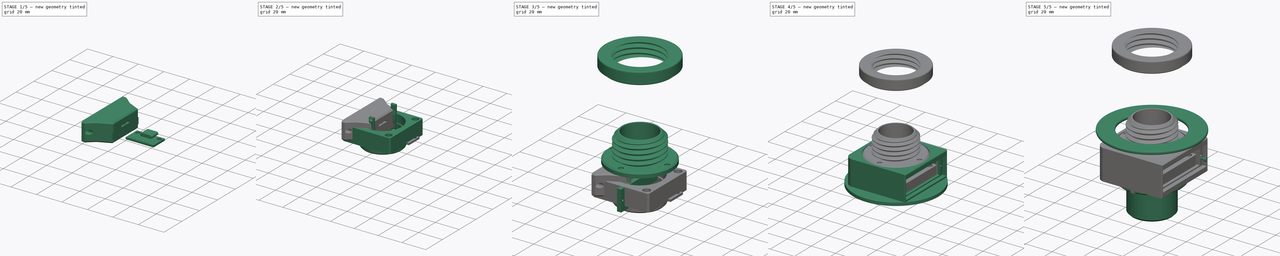
[diagram: build sequence overview — one tinted view per stage of 5, left to right]
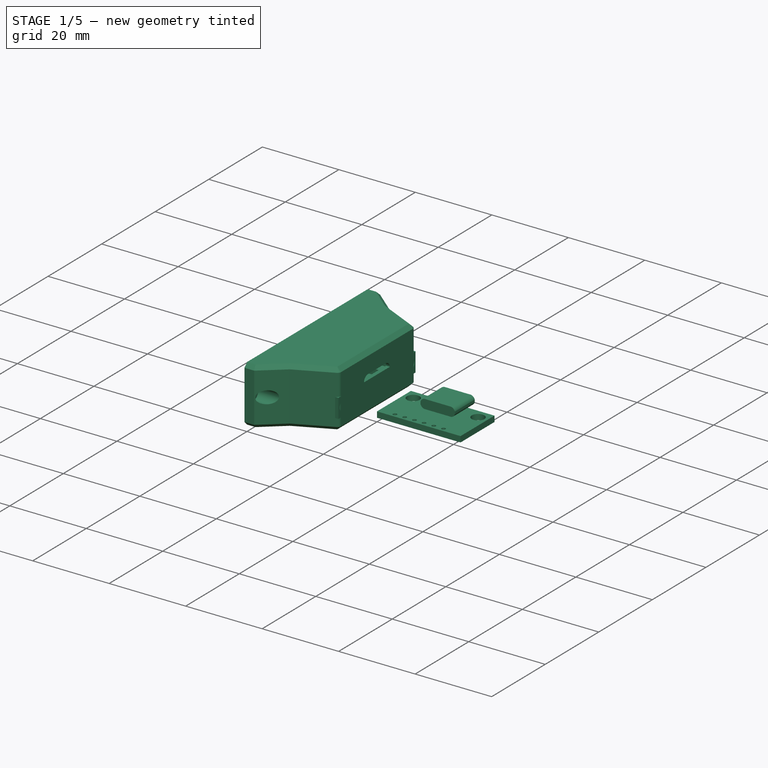
[diagram: stage 1 of 5 — iso view after this stage's code; geometry added in this stage tinted green]
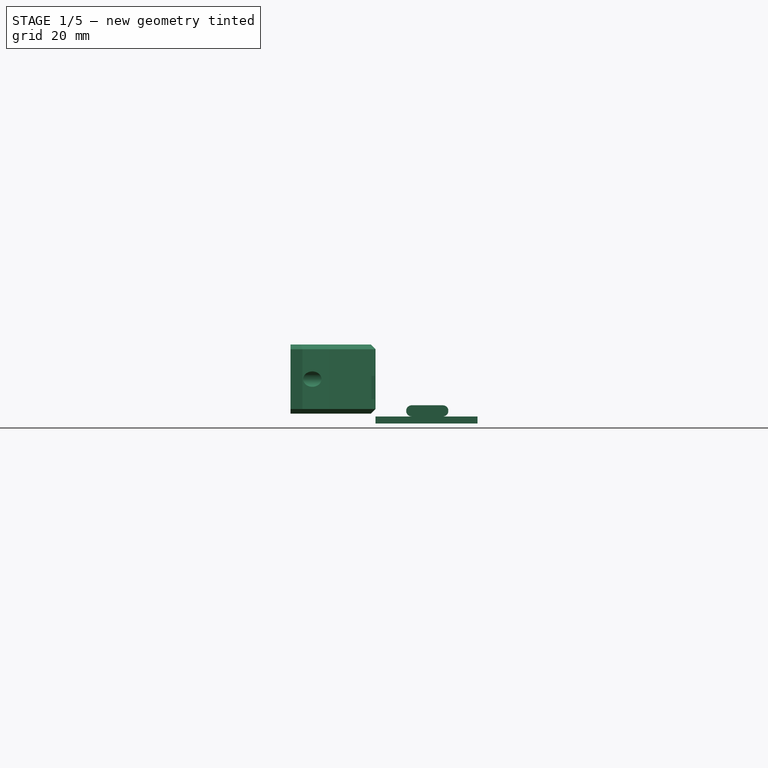
[diagram: stage 1 of 5 — front view after this stage's code; geometry added in this stage tinted green]
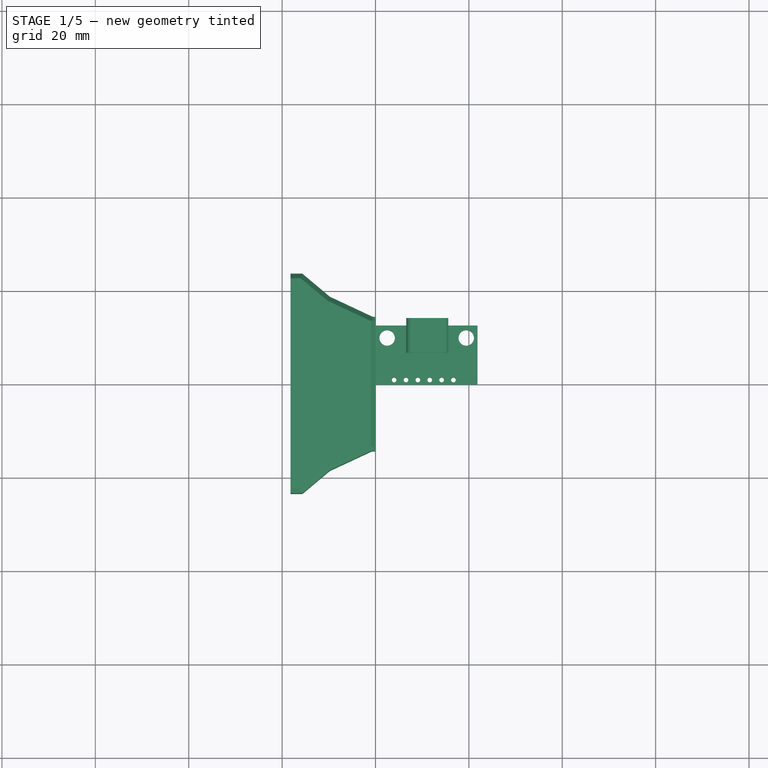
[diagram: stage 1 of 5 — top view after this stage's code; geometry added in this stage tinted green]
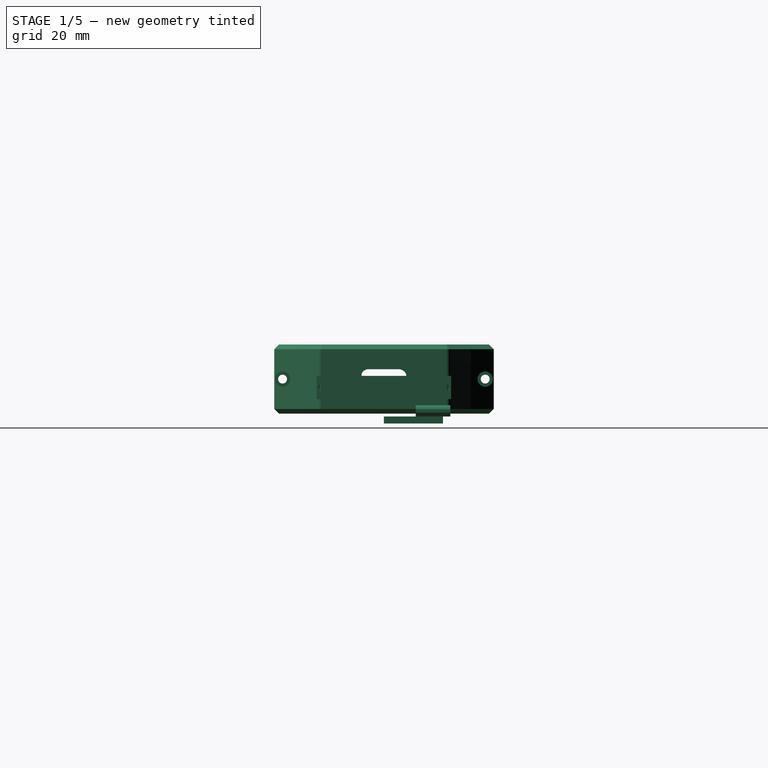
[diagram: stage 1 of 5 — right view after this stage's code; geometry added in this stage tinted green]
FCSTD DOCUMENT  (FreeCAD 0.20R29177 +426 (Git))
Label: Air_Ventilation_System
License: All rights reserved
LicenseURL: http://en.wikipedia.org/wiki/All_rights_reserved
objects: Sketcher::SketchObject×55, PartDesign::Pocket×27, PartDesign::Pad×23, PartDesign::Body×20, PartDesign::Chamfer×17, PartDesign::FeatureBase×8, PartDesign::Fillet×7, Part::FeaturePython×5, App::DocumentObjectGroup×3, Part::Cut×2, Part::Cylinder×1, Part::MultiFuse×1
note: 240 computed .brp shape members not serialized (recipe doc carries the construction recipe); baked Part::Feature solids carry a one-line shape summary decoded from their .brp

FEATURE [PartDesign::Body] Body016  label="Inner_Tube_Connector"
  Group = -> [Sketch036,Pad013,Sketch037,Pad014,Chamfer019,Chamfer020,Sketch,Pad015,Sketch038,Pad016,Fillet002,Sketch039,Pocket016,Fillet003,Sketch040,Pad017,Sketch041,Pad018,Fillet004,Sketch042,Pocket017,Fillet005,Chamfer021]
  Origin = -> Origin016
  Tip = -> Chamfer021
FEATURE [App::DocumentObjectGroup] Group001  label="Inner_Tube"
  Group = -> [Body,Body016]
FEATURE [Sketcher::SketchObject] Sketch043
  FullyConstrained = true
  MapMode = 5
  Support = -> [XY_Plane017]
  sketch-geometry (4):
    g0: LineSegment StartX=0 StartY=0 StartZ=0 EndX=21.85 EndY=0 EndZ=0
    g1: LineSegment StartX=21.85 StartY=0 StartZ=0 EndX=21.85 EndY=12.67 EndZ=0
    g2: LineSegment StartX=21.85 StartY=12.67 StartZ=0 EndX=0 EndY=12.67 EndZ=0
    g3: LineSegment StartX=0 StartY=12.67 StartZ=0 EndX=0 EndY=0 EndZ=0
  constraints (11):
    c: Coincident(g0,g1)
    c: Coincident(g1,g2)
    c: Coincident(g2,g3)
    c: Coincident(g3,g0)
    c: Horizontal(g0)
    c: Horizontal(g2)
    c: Vertical(g1)
    c: Vertical(g3)
    c: Coincident(g0,g-1)
    c: DistanceX(g0,g0) = 21.85
    c: DistanceY(g3,g3) = 12.67
FEATURE [PartDesign::Pad] Pad019  label="PCB_Board"
  Direction = (0,0,1)
  Length = 1.5
  Length2 = 10
  Profile = -> Sketch043
  ReferenceAxis = -> Sketch043 [N_Axis]
  Type = 0
FEATURE [Sketcher::SketchObject] Sketch044
  AttachmentOffset = pos=(0,0,-6.83) rot=(0,0,1;0rad)
  FullyConstrained = true
  MapMode = 5
  Placement = pos=(0,6.83,1.5e-15) rot=(1,0,0;1.5708rad)
  Support = -> [XZ_Plane017]
  sketch-geometry (11):
    g0: LineSegment StartX=0 StartY=0 StartZ=0 EndX=6.6 EndY=0 EndZ=0
    g1: LineSegment StartX=6.6 StartY=0 StartZ=0 EndX=6.6 EndY=2.39604 EndZ=0
    g2: LineSegment StartX=6.6 StartY=2.39604 StartZ=0 EndX=6.6 EndY=2.99604 EndZ=0
    g3: LineSegment StartX=6.6 StartY=2.39604 StartZ=0 EndX=15.58 EndY=2.39604 EndZ=0
    g4: LineSegment StartX=15.58 StartY=2.39604 StartZ=0 EndX=15.58 EndY=2.99604 EndZ=0
    g5: LineSegment StartX=7.79 StartY=1.5 StartZ=0 EndX=14.39 EndY=1.5 EndZ=0
    g6: LineSegment StartX=7.79 StartY=3.89207 StartZ=0 EndX=14.39 EndY=3.89207 EndZ=0
    g7: ArcOfCircle CenterX=7.75824 CenterY=2.69604 CenterZ=0 NormalX=0 NormalY=0 NormalZ=1 AngleXU=0 Radius=1.19646 StartAngle=3.39504 EndAngle=4.73894
    g8: ArcOfCircle CenterX=7.75824 CenterY=2.69604 CenterZ=0 NormalX=0 NormalY=0 NormalZ=1 AngleXU=0 Radius=1.19646 StartAngle=1.54424 EndAngle=2.88815
    g9: ArcOfCircle CenterX=14.4218 CenterY=2.69604 CenterZ=0 NormalX=0 NormalY=0 NormalZ=1 AngleXU=0 Radius=1.19646 StartAngle=4.68584 EndAngle=6.02974
    g10: ArcOfCircle CenterX=14.4218 CenterY=2.69604 CenterZ=0 NormalX=0 NormalY=0 NormalZ=1 AngleXU=0 Radius=1.19646 StartAngle=0.253445 EndAngle=1.59735
  constraints (34):
    c: Coincident(g0,g-1)
    c: PointOnObject(g0,g-1)
    c: DistanceX(g0,g0) = 6.6
    c: Coincident(g1,g0)
    c: Vertical(g1)
    c: Coincident(g2,g1)
    c: Vertical(g2)
    c: Coincident(g3,g2)
    c: Horizontal(g3)
    c: Coincident(g4,g3)
    c: Vertical(g4)
    c: DistanceX(g3,g3) = 8.98
    c: DistanceY(g2,g2) = 0.6
    c: Horizontal(g5)
    c: Horizontal(g6)
    c: Equal(g5,g6)
    c: DistanceX(g6,g6) = 6.6
    c: Coincident(g7,g2)
    c: Coincident(g7,g5)
    c: Coincident(g8,g7)
    c: Coincident(g8,g2)
    c: Coincident(g8,g6)
    c: Coincident(g9,g4)
    c: Coincident(g9,g5)
    c: Coincident(g10,g9)
    c: Coincident(g10,g4)
    c: Coincident(g10,g6)
    c: Equal(g4,g2)
    c: Angle(g10) = 1.3439
    c: Angle(g8) = 1.3439
    c: Angle(g9) = 1.3439
    c: Angle(g7) = 1.3439
    c: DistanceY(g5,g6) = 2.39207
    c: DistanceY(g0,g5) = 1.5
FEATURE [PartDesign::Pad] Pad020
  BaseFeature = -> Pad019
  Direction = (0,-1,2e-16)
  Length = 7.42
  Length2 = 10
  Profile = -> Sketch044
  ReferenceAxis = -> Sketch044 [N_Axis]
  Reversed = true
  Type = 0
FEATURE [Sketcher::SketchObject] Sketch045
  FullyConstrained = true
  MapMode = 5
  Support = -> [XY_Plane017]
  sketch-geometry (2):
    g0: Circle CenterX=2.5 CenterY=10 CenterZ=0 NormalX=0 NormalY=0 NormalZ=1 AngleXU=0 Radius=1.65
    g1: Circle CenterX=19.44 CenterY=10 CenterZ=0 NormalX=0 NormalY=0 NormalZ=1 AngleXU=0 Radius=1.65
  constraints (6):
    c: DistanceX(g-1,g0) = 2.5
    c: DistanceX(g1) = 19.44
    c: DistanceY(g-1,g0) = 10
    c: DistanceY(g-1,g1) = 10
    c: Equal(g1,g0)
    c: Diameter(g0) = 3.3
FEATURE [PartDesign::Pocket] Pocket018
  BaseFeature = -> Pad020
  Direction = (0,0,-1)
  Length = 5
  Length2 = 5
  Profile = -> Sketch045
  ReferenceAxis = -> Sketch045 [N_Axis]
  Reversed = true
  Type = 0
FEATURE [Sketcher::SketchObject] Sketch046
  FullyConstrained = true
  MapMode = 5
  Support = -> [XY_Plane017]
  sketch-geometry (14):
    g0: Circle CenterX=4 CenterY=1 CenterZ=0 NormalX=0 NormalY=0 NormalZ=1 AngleXU=0 Radius=0.5
    g1: Circle CenterX=6.54 CenterY=1 CenterZ=0 NormalX=0 NormalY=0 NormalZ=1 AngleXU=0 Radius=0.5
    g2: Circle CenterX=9.08 CenterY=1 CenterZ=0 NormalX=0 NormalY=0 NormalZ=1 AngleXU=0 Radius=0.5
    g3: Circle CenterX=11.62 CenterY=1 CenterZ=0 NormalX=0 NormalY=0 NormalZ=1 AngleXU=0 Radius=0.5
    g4: Circle CenterX=14.16 CenterY=1 CenterZ=0 NormalX=0 NormalY=0 NormalZ=1 AngleXU=0 Radius=0.5
    g5: Circle CenterX=16.7 CenterY=1 CenterZ=0 NormalX=0 NormalY=0 NormalZ=1 AngleXU=0 Radius=0.5
    g6: LineSegment StartX=4 StartY=1 StartZ=0 EndX=6.54 EndY=1 EndZ=0
    g7: LineSegment StartX=4 StartY=1 StartZ=0 EndX=4 EndY=0 EndZ=0
    g8: LineSegment StartX=9.08 StartY=1 StartZ=0 EndX=9.08 EndY=0 EndZ=0
    g9: LineSegment StartX=6.54 StartY=1 StartZ=0 EndX=9.08 EndY=1 EndZ=0
    g10: LineSegment StartX=9.08 StartY=1 StartZ=0 EndX=11.62 EndY=1 EndZ=0
    g11: LineSegment StartX=11.62 StartY=1 StartZ=0 EndX=14.16 EndY=1 EndZ=0
    g12: LineSegment StartX=14.16 StartY=1 StartZ=0 EndX=16.7 EndY=1 EndZ=0
    g13: LineSegment StartX=16.7 StartY=1 StartZ=0 EndX=16.7 EndY=0 EndZ=0
  constraints (37):
    c: Equal(g0,g1)
    c: Equal(g1,g2)
    c: Equal(g2,g3)
    c: Equal(g3,g4)
    c: Equal(g4,g5)
    c: DistanceX(g-1,g0) = 4
    c: Coincident(g6,g0)
    c: Coincident(g6,g1)
    c: Diameter(g0) = 1
    c: Coincident(g7,g0)
    c: PointOnObject(g7,g-1)
    c: Vertical(g7)
    c: Coincident(g8,g2)
    c: PointOnObject(g8,g-1)
    c: Vertical(g8)
    c: Equal(g7,g8)
    c: Coincident(g9,g1)
    c: Coincident(g9,g2)
    c: Horizontal(g9)
    c: Equal(g9,g6)
    c: DistanceY(g7,g7) = 1
    c: DistanceX(g6,g6) = 2.54
    c: Coincident(g10,g2)
    c: Coincident(g10,g3)
    c: Equal(g9,g10)
    c: Angle(g8,g10) = 1.5708
    c: Coincident(g11,g3)
    c: Coincident(g11,g4)
    c: Horizontal(g11)
    c: Coincident(g12,g4)
    c: Coincident(g12,g5)
    c: Equal(g11,g10)
    c: Equal(g12,g11)
    c: Coincident(g13,g5)
    c: PointOnObject(g13,g-1)
    c: Vertical(g13)
    c: Equal(g13,g8)
FEATURE [PartDesign::Pocket] Pocket019
  BaseFeature = -> Pocket018
  Direction = (0,0,-1)
  Length = 5
  Length2 = 5
  Profile = -> Sketch046
  ReferenceAxis = -> Sketch046 [N_Axis]
  Reversed = true
  Type = 0
FEATURE [Sketcher::SketchObject] Sketch047
  AttachmentOffset = pos=(0,0,-9) rot=(0,0,1;0rad)
  FullyConstrained = false
  MapMode = 5
  Placement = pos=(0,9,2e-15) rot=(1,0,0;1.5708rad)
  Support = -> [XZ_Plane017]
  sketch-geometry (11):
    g0: LineSegment StartX=0 StartY=0 StartZ=0 EndX=6.9 EndY=0 EndZ=0
    g1: LineSegment StartX=6.9 StartY=0 StartZ=0 EndX=6.9 EndY=2.40201 EndZ=0
    g2: LineSegment StartX=6.9 StartY=2.40201 StartZ=0 EndX=6.9 EndY=3.00201 EndZ=0
    g3: LineSegment StartX=6.9 StartY=2.40201 StartZ=0 EndX=15.3 EndY=2.40201 EndZ=0
    g4: LineSegment StartX=15.3 StartY=2.40201 StartZ=0 EndX=15.3 EndY=3.00201 EndZ=0
    g5: LineSegment StartX=7.93566 StartY=1.7 StartZ=0 EndX=14.2643 EndY=1.7 EndZ=0
    g6: LineSegment StartX=7.93566 StartY=3.70401 StartZ=0 EndX=14.2643 EndY=3.70401 EndZ=0
    g7: ArcOfCircle CenterX=7.8591 CenterY=2.70201 CenterZ=0 NormalX=0 NormalY=0 NormalZ=1 AngleXU=0 Radius=1.00493 StartAngle=3.44474 EndAngle=4.78865
    g8: ArcOfCircle CenterX=7.8591 CenterY=2.70201 CenterZ=0 NormalX=0 NormalY=0 NormalZ=1 AngleXU=0 Radius=1.00493 StartAngle=1.49454 EndAngle=2.83844
    g9: ArcOfCircle CenterX=14.3409 CenterY=2.70201 CenterZ=0 NormalX=0 NormalY=0 NormalZ=1 AngleXU=0 Radius=1.00493 StartAngle=4.63613 EndAngle=5.98003
    g10: ArcOfCircle CenterX=14.3409 CenterY=2.70201 CenterZ=0 NormalX=0 NormalY=0 NormalZ=1 AngleXU=0 Radius=1.00493 StartAngle=0.303151 EndAngle=1.64705
  constraints (34):
    c: Coincident(g0,g-1)
    c: PointOnObject(g0,g-1)
    c: DistanceX(g0,g0) = 6.9
    c: Coincident(g1,g0)
    c: Vertical(g1)
    c: Coincident(g2,g1)
    c: Vertical(g2)
    c: Coincident(g3,g2)
    c: Horizontal(g3)
    c: Coincident(g4,g3)
    c: Vertical(g4)
    c: DistanceX(g3,g3) = 8.4
    c: DistanceY(g2,g2) = 0.6
    c: Horizontal(g5)
    c: Horizontal(g6)
    c: Equal(g5,g6)
    c: DistanceX(g6,g6) = 6.32868
    c: Coincident(g7,g2)
    c: Coincident(g7,g5)
    c: Coincident(g8,g7)
    c: Coincident(g8,g2)
    c: Coincident(g8,g6)
    c: Coincident(g9,g4)
    c: Coincident(g9,g5)
    c: Coincident(g10,g9)
    c: Coincident(g10,g4)
    c: Coincident(g10,g6)
    c: Equal(g4,g2)
    c: Angle(g10) = 1.3439
    c: Angle(g8) = 1.3439
    c: Angle(g9) = 1.3439
    c: Angle(g7) = 1.3439
    c: DistanceY(g5,g6) = 2.00401
    c: DistanceY(g0,g5) = 1.7
FEATURE [PartDesign::Pocket] Pocket020
  BaseFeature = -> Pocket019
  Direction = (0,1,-2e-16)
  Length = 6
  Length2 = 5
  Profile = -> Sketch047
  ReferenceAxis = -> Sketch047 [N_Axis]
  Type = 0
FEATURE [PartDesign::Body] Body017  label="USB_Board"
  Group = -> [Sketch043,Pad019,Sketch044,Pad020,Sketch045,Pocket018,Sketch046,Pocket019,Sketch047,Pocket020,Sketch048,Pad021]
  Origin = -> Origin017
  Placement = pos=(28,11.1,7) rot=(0,0,-1;1.5708rad)
  Tip = -> Pad021
FEATURE [App::DocumentObjectGroup] Group002  label="Original_Parts"
  Group = -> [Body017,Body001]
FEATURE [Sketcher::SketchObject] Sketch049
  AttachmentOffset = pos=(0,0,2.1) rot=(0,0,1;0rad)
  FullyConstrained = false
  MapMode = 5
  Placement = pos=(0,0,2.1) rot=(0,0,1;0rad)
  Support = -> [XY_Plane018]
  sketch-geometry (11):
    g0: LineSegment StartX=0 StartY=0 StartZ=0 EndX=0 EndY=14 EndZ=0
    g1: LineSegment StartX=0 StartY=0 StartZ=0 EndX=0 EndY=-14 EndZ=0
    g2: LineSegment StartX=-15.6483 StartY=-23.4786 StartZ=0 EndX=-9.79606 EndY=-18.568 EndZ=0
    g3: LineSegment StartX=0 StartY=-14 StartZ=0 EndX=-9.79606 EndY=-18.568 EndZ=0
    g4: LineSegment StartX=0 StartY=14 StartZ=0 EndX=-9.78166 EndY=18.5987 EndZ=0
    g5: LineSegment StartX=-15.6483 StartY=23.5214 StartZ=0 EndX=-9.78166 EndY=18.5987 EndZ=0
    g6: LineSegment StartX=-15.6483 StartY=23.5214 StartZ=0 EndX=-18.2031 EndY=23.5214 EndZ=0
    g7: LineSegment StartX=-15.6483 StartY=-23.4786 StartZ=0 EndX=-18.2031 EndY=-23.4786 EndZ=0
    g8: LineSegment StartX=-18.2031 StartY=-23.4786 StartZ=0 EndX=-18.2031 EndY=23.5214 EndZ=0
    g9: LineSegment StartX=-15.6483 StartY=23.5214 StartZ=0 EndX=0 EndY=23.5214 EndZ=0
    g10: LineSegment StartX=-9.78166 StartY=18.5987 StartZ=0 EndX=0 EndY=18.5987 EndZ=0
  constraints (30):
    c: Coincident(g0,g-1)
    c: PointOnObject(g0,g-2)
    c: Coincident(g1,g0)
    c: PointOnObject(g1,g-2)
    c: DistanceY(g0,g0) = 14
    c: DistanceY(g1,g1) = 14
    c: Coincident(g3,g1)
    c: Coincident(g3,g2)
    c: Coincident(g4,g0)
    c: Equal(g3,g4)
    c: Coincident(g5,g4)
    c: Coincident(g6,g5)
    c: Horizontal(g6)
    c: Coincident(g7,g2)
    c: Coincident(g8,g7)
    c: Coincident(g8,g6)
    c: Vertical(g8)
    c: Coincident(g9,g5)
    c: PointOnObject(g9,g-2)
    c: Horizontal(g9)
    c: Angle(g5,g9) = 0.698132
    c: Coincident(g10,g4)
    c: PointOnObject(g10,g-2)
    c: Horizontal(g10)
    c: Angle(g4,g10) = 0.439474
    c: Angle(g-1,g3) = 0.436332
    c: Angle(g-1,g2) = 0.698132
    c: Equal(g7,g6)
    c: DistanceY(g8,g8) = 47
    c: Angle(g7,g8) = 1.5708
FEATURE [PartDesign::Pad] Pad022
  Direction = (0,0,1)
  Length = 14.8
  Length2 = 10
  Profile = -> Sketch049
  ReferenceAxis = -> Sketch049 [N_Axis]
  Type = 0
FEATURE [Sketcher::SketchObject] Sketch050
  AttachmentOffset = pos=(-1,0,4.1) rot=(0,0,1;0rad)
  FullyConstrained = false
  MapMode = 5
  Placement = pos=(-1,0,4.1) rot=(0,0,1;0rad)
  Support = -> [XY_Plane018]
  sketch-geometry (11):
    g0: LineSegment StartX=0 StartY=0 StartZ=0 EndX=0 EndY=12 EndZ=0
    g1: LineSegment StartX=0 StartY=0 StartZ=0 EndX=0 EndY=-12 EndZ=0
    g2: LineSegment StartX=-11.4397 StartY=-17.9788 StartZ=0 EndX=-9.71136 EndY=-16.5285 EndZ=0
    g3: LineSegment StartX=0 StartY=-12 StartZ=0 EndX=-9.71136 EndY=-16.5285 EndZ=0
    g4: LineSegment StartX=0 StartY=12 StartZ=0 EndX=-9.69709 EndY=16.559 EndZ=0
    g5: LineSegment StartX=-11.4397 StartY=18.0212 StartZ=0 EndX=-9.69709 EndY=16.559 EndZ=0
    g6: LineSegment StartX=-11.4397 StartY=18.0212 StartZ=0 EndX=-25.2045 EndY=18.0212 EndZ=0
    g7: LineSegment StartX=-11.4397 StartY=-17.9788 StartZ=0 EndX=-25.2045 EndY=-17.9788 EndZ=0
    g8: LineSegment StartX=-25.2045 StartY=-17.9788 StartZ=0 EndX=-25.2045 EndY=18.0212 EndZ=0
    g9: LineSegment StartX=-11.4397 StartY=18.0212 StartZ=0 EndX=0 EndY=18.0212 EndZ=0
    g10: LineSegment StartX=-9.69709 StartY=16.559 StartZ=0 EndX=0 EndY=16.559 EndZ=0
  constraints (30):
    c: Coincident(g0,g-1)
    c: PointOnObject(g0,g-2)
    c: Coincident(g1,g0)
    c: PointOnObject(g1,g-2)
    c: DistanceY(g0,g0) = 12
    c: DistanceY(g1,g1) = 12
    c: Coincident(g3,g1)
    c: Coincident(g3,g2)
    c: Coincident(g4,g0)
    c: Equal(g3,g4)
    c: Coincident(g5,g4)
    c: Coincident(g6,g5)
    c: Horizontal(g6)
    c: Coincident(g7,g2)
    c: Coincident(g8,g7)
    c: Coincident(g8,g6)
    c: Vertical(g8)
    c: Coincident(g9,g5)
    c: PointOnObject(g9,g-2)
    c: Horizontal(g9)
    c: Angle(g5,g9) = 0.698132
    c: Coincident(g10,g4)
    c: PointOnObject(g10,g-2)
    c: Horizontal(g10)
    c: Angle(g4,g10) = 0.439474
    c: Angle(g-1,g3) = 0.436332
    c: Angle(g-1,g2) = 0.698132
    c: Equal(g7,g6)
    c: DistanceY(g8,g8) = 36
    c: Angle(g7,g8) = 1.5708
FEATURE [PartDesign::Pocket] Pocket021
  BaseFeature = -> Pad022
  Direction = (0,0,-1)
  Length = 11
  Length2 = 5
  Profile = -> Sketch050
  ReferenceAxis = -> Sketch050 [N_Axis]
  Reversed = true
  Type = 0
FEATURE [Sketcher::SketchObject] Sketch051  label="PCB_Slides_Sketch"
  AttachmentOffset = pos=(0,7.2,-1) rot=(0,0,1;0rad)
  FullyConstrained = true
  MapMode = 5
  Placement = pos=(-1,1.8e-15,7.2) rot=(0.57735,0.57735,0.57735;2.0944rad)
  Support = -> [YZ_Plane018]
  sketch-geometry (18):
    g0: LineSegment StartX=-14.4 StartY=0 StartZ=0 EndX=-14.4 EndY=2.5 EndZ=0
    g1: LineSegment StartX=-14.4 StartY=0 StartZ=0 EndX=-14.4 EndY=-2.5 EndZ=0
    g2: LineSegment StartX=-14.4 StartY=2.5 StartZ=0 EndX=-9.1 EndY=2.5 EndZ=0
    g3: LineSegment StartX=-14.4 StartY=-2.5 StartZ=0 EndX=-9.1 EndY=-2.5 EndZ=0
    g4: LineSegment StartX=-9.1 StartY=-2.5 StartZ=0 EndX=-9.1 EndY=-1 EndZ=0
    g5: LineSegment StartX=-9.1 StartY=-1 StartZ=0 EndX=-11.4 EndY=-1 EndZ=0
    g6: LineSegment StartX=-11.4 StartY=-1 StartZ=0 EndX=-11.4 EndY=1 EndZ=0
    g7: LineSegment StartX=-9.1 StartY=2.5 StartZ=0 EndX=-9.1 EndY=1 EndZ=0
    g8: LineSegment StartX=-11.4 StartY=1 StartZ=0 EndX=-9.1 EndY=1 EndZ=0
    g9: LineSegment StartX=9.1 StartY=1 StartZ=0 EndX=11.4 EndY=1 EndZ=0
    g10: LineSegment StartX=11.4 StartY=-1 StartZ=0 EndX=9.1 EndY=-1 EndZ=0
    g11: LineSegment StartX=9.1 StartY=-1 StartZ=0 EndX=9.1 EndY=-2.5 EndZ=0
    g12: LineSegment StartX=14.4 StartY=2.5 StartZ=0 EndX=9.1 EndY=2.5 EndZ=0
    g13: LineSegment StartX=9.1 StartY=2.5 StartZ=0 EndX=9.1 EndY=1 EndZ=0
    g14: LineSegment StartX=11.4 StartY=0 StartZ=0 EndX=11.4 EndY=1 EndZ=0
    g15: LineSegment StartX=11.4 StartY=-1 StartZ=0 EndX=11.4 EndY=0 EndZ=0
    g16: LineSegment StartX=14.4 StartY=2.5 StartZ=0 EndX=14.4 EndY=-2.5 EndZ=0
    g17: LineSegment StartX=9.1 StartY=-2.5 StartZ=0 EndX=14.4 EndY=-2.5 EndZ=0
  constraints (54):
    c: PointOnObject(g0,g-1)
    c: Vertical(g0)
    c: Coincident(g1,g0)
    c: Vertical(g1)
    c: Coincident(g2,g0)
    c: Horizontal(g2)
    c: Coincident(g3,g1)
    c: Horizontal(g3)
    c: Coincident(g4,g3)
    c: Vertical(g4)
    c: Coincident(g5,g4)
    c: Horizontal(g5)
    c: Coincident(g6,g5)
    c: Vertical(g6)
    c: Coincident(g7,g2)
    c: DistanceY(g4,g4) = 1.5
    c: DistanceY(g-1,g7) = 1
    c: DistanceY(g4,g-1) = 1
    c: Equal(g4,g7)
    c: Coincident(g8,g6)
    c: Coincident(g8,g7)
    c: Horizontal(g8)
    c: DistanceX(g8,g8) = 2.3
    c: Angle(g7,g8) = 1.5708
    c: Equal(g8,g5)
    c: DistanceX(g2,g-1) = 9.1
    c: Horizontal(g9)
    c: Horizontal(g10)
    c: Coincident(g11,g10)
    c: Horizontal(g12)
    c: Coincident(g13,g12)
    c: Coincident(g13,g9)
    c: Angle(g13,g12) = 1.5708
    c: DistanceX(g-1,g12) = 9.1
    c: Equal(g4,g11)
    c: Equal(g11,g13)
    c: PointOnObject(g14,g-1)
    c: Coincident(g14,g9)
    c: Vertical(g14)
    c: Coincident(g15,g10)
    c: Coincident(g15,g14)
    c: Vertical(g15)
    c: DistanceY(g15,g15) = 1
    c: Equal(g15,g14)
    c: DistanceX(g9,g9) = 2.3
    c: Coincident(g16,g12)
    c: Vertical(g16)
    c: Coincident(g17,g11)
    c: Coincident(g17,g16)
    c: Horizontal(g17)
    c: Equal(g3,g17)
    c: Angle(g17,g11) = 1.5708
    c: Equal(g10,g9)
    c: DistanceX(g1,g5) = 3
FEATURE [PartDesign::Pad] Pad023  label="PCB_Slides"
  BaseFeature = -> Pocket021
  Direction = (1,-2e-16,3e-16)
  Length = 14
  Length2 = 10
  Profile = -> Sketch051
  ReferenceAxis = -> Sketch051 [N_Axis]
  Reversed = true
  Type = 0
FEATURE [Sketcher::SketchObject] Sketch052  label="USB_Pocket_Sketch"
  AttachmentOffset = pos=(0,9.7,0) rot=(0,0,1;0rad)
  FullyConstrained = true
  MapMode = 5
  Placement = pos=(-2.2e-15,2.2e-15,9.7) rot=(0.57735,0.57735,0.57735;2.0944rad)
  Support = -> [YZ_Plane018]
  sketch-geometry (8):
    g0: LineSegment StartX=-3.53 StartY=1.9 StartZ=0 EndX=3.37 EndY=1.9 EndZ=0
    g1: LineSegment StartX=-3.45 StartY=-1.9 StartZ=0 EndX=3.45 EndY=-1.9 EndZ=0
    g2: LineSegment StartX=-4.8 StartY=-0.6 StartZ=0 EndX=-4.8 EndY=0.8 EndZ=0
    g3: LineSegment StartX=4.8 StartY=-0.7 StartZ=0 EndX=4.8 EndY=0.7 EndZ=0
    g4: ArcOfCircle CenterX=-3.16134 CenterY=-0.249271 CenterZ=0 NormalX=0 NormalY=0 NormalZ=1 AngleXU=0 Radius=1.67578 StartAngle=3.35244 EndAngle=4.53927
    g5: ArcOfCircle CenterX=-3.34959 CenterY=0.408574 CenterZ=0 NormalX=0 NormalY=0 NormalZ=1 AngleXU=0 Radius=1.5023 StartAngle=1.69118 EndAngle=2.878
    g6: ArcOfCircle CenterX=3.19546 CenterY=0.239969 CenterZ=0 NormalX=0 NormalY=0 NormalZ=1 AngleXU=0 Radius=1.66918 StartAngle=0.279217 EndAngle=1.46604
    g7: ArcOfCircle CenterX=3.23546 CenterY=-0.299271 CenterZ=0 NormalX=0 NormalY=0 NormalZ=1 AngleXU=0 Radius=1.61504 StartAngle=4.84562 EndAngle=6.03244
  constraints (28):
    c: Horizontal(g0)
    c: Horizontal(g1)
    c: Vertical(g2)
    c: Vertical(g3)
    c: DistanceY(g2,g2) = 1.4
    c: Equal(g3,g2)
    c: Equal(g1,g0)
    c: DistanceY(g2,g-1) = 0.6
    c: DistanceX(g2,g-1) = 4.8
    c: DistanceX(g-1,g3) = 4.8
    c: DistanceX(g-1,g1) = 3.45
    c: DistanceX(g-1,g0) = 3.37
    c: DistanceX(g1,g-1) = 3.45
    c: DistanceY(g1,g-1) = 1.9
    c: DistanceY(g-1,g0) = 1.9
    c: Coincident(g4,g2)
    c: Coincident(g4,g1)
    c: Angle(g4) = 1.18682
    c: Coincident(g5,g2)
    c: Coincident(g5,g0)
    c: Angle(g5) = 1.18682
    c: Coincident(g6,g0)
    c: Coincident(g6,g3)
    c: Angle(g6) = 1.18682
    c: Coincident(g7,g1)
    c: Coincident(g7,g3)
    c: Angle(g7) = 1.18682
    c: DistanceY(g3,g-1) = 0.7
FEATURE [PartDesign::Pocket] Pocket022  label="USB_Pocket"
  BaseFeature = -> Pad023
  Direction = (-1,2e-16,-3e-16)
  Length = 2
  Length2 = 5
  Profile = -> Sketch052
  ReferenceAxis = -> Sketch052 [N_Axis]
  Type = 0
FEATURE [Sketcher::SketchObject] Sketch053
  FullyConstrained = true
  MapMode = 5
  Placement = pos=(0,0,0) rot=(0.57735,0.57735,0.57735;2.0944rad)
  Support = -> [YZ_Plane018]
  sketch-geometry (3):
    g0: Circle CenterX=-21.7 CenterY=9.5 CenterZ=0 NormalX=0 NormalY=0 NormalZ=1 AngleXU=0 Radius=0.95
    g1: Circle CenterX=21.7 CenterY=9.5 CenterZ=0 NormalX=0 NormalY=0 NormalZ=1 AngleXU=0 Radius=0.95
    g2: LineSegment StartX=-21.7 StartY=9.5 StartZ=0 EndX=21.7 EndY=9.5 EndZ=0
  constraints (8):
    c: Equal(g0,g1)
    c: Coincident(g2,g0)
    c: Coincident(g2,g1)
    c: Horizontal(g2)
    c: DistanceY(g-1,g0) = 9.5
    c: DistanceX(g-1,g1) = 21.7
    c: DistanceX(g0,g-1) = 21.7
    c: Diameter(g0) = 1.9
FEATURE [PartDesign::Pocket] Pocket023  label="Power_Supply_Screw_Through_Hole"
  BaseFeature = -> Pocket022
  Direction = (-1,2e-16,-3e-16)
  Length = 22
  Length2 = 5
  Profile = -> Sketch053
  ReferenceAxis = -> Sketch053 [N_Axis]
  Type = 0
FEATURE [Sketcher::SketchObject] Sketch054
  AttachmentOffset = pos=(0,0,3) rot=(0,0,1;0rad)
  FullyConstrained = true
  MapMode = 5
  Placement = pos=(3,-7e-16,7e-16) rot=(0.57735,0.57735,0.57735;2.0944rad)
  Support = -> [YZ_Plane018]
  sketch-geometry (3):
    g0: Circle CenterX=-21.7 CenterY=9.5 CenterZ=0 NormalX=0 NormalY=0 NormalZ=1 AngleXU=0 Radius=1.65
    g1: Circle CenterX=21.7 CenterY=9.5 CenterZ=0 NormalX=0 NormalY=0 NormalZ=1 AngleXU=0 Radius=1.65
    g2: LineSegment StartX=-21.7 StartY=9.5 StartZ=0 EndX=21.7 EndY=9.5 EndZ=0
  constraints (8):
    c: Equal(g0,g1)
    c: Coincident(g2,g0)
    c: Coincident(g2,g1)
    c: Horizontal(g2)
    c: DistanceY(g-1,g0) = 9.5
    c: DistanceX(g-1,g1) = 21.7
    c: DistanceX(g0,g-1) = 21.7
    c: Diameter(g0) = 3.3
FEATURE [PartDesign::Pocket] Pocket024  label="Power_Supply_Screw_Head_Pocket"
  BaseFeature = -> Pocket023
  Direction = (-1,2e-16,-3e-16)
  Length = 20
  Length2 = 5
  Profile = -> Sketch054
  ReferenceAxis = -> Sketch054 [N_Axis]
  Type = 0
FEATURE [PartDesign::Fillet] Fillet006
  Base = -> Pocket024 [Edge23,Edge40]
  BaseFeature = -> Pocket024
  Radius = 1
  SupportTransform = false
  UseAllEdges = false
FEATURE [PartDesign::Chamfer] Chamfer022
  Angle = 45
  Base = -> Fillet006 [Edge11,Edge9,Edge10,Edge6,Edge8,Edge4,Edge3,Edge5,Edge1,Edge2,Edge29,Edge18,Edge14,Edge16,Edge21,Edge31,Edge50,Edge46,Edge51,Edge48]
  BaseFeature = -> Fillet006
  ChamferType = 0
  FlipDirection = false
  Size = 1
  Size2 = 1
  SupportTransform = false
  UseAllEdges = false
FEATURE [Sketcher::SketchObject] Sketch055
  AttachmentOffset = pos=(0,0,-11) rot=(0,0,1;0rad)
  FullyConstrained = true
  MapMode = 5
  Placement = pos=(-11,2.4e-15,-2.4e-15) rot=(0.57735,0.57735,0.57735;2.0944rad)
  Support = -> [YZ_Plane018]
  sketch-geometry (2):
    g0: Circle CenterX=-13 CenterY=7.2 CenterZ=0 NormalX=0 NormalY=0 NormalZ=1 AngleXU=0 Radius=0.65
    g1: Circle CenterX=13 CenterY=7.2 CenterZ=0 NormalX=0 NormalY=0 NormalZ=1 AngleXU=0 Radius=0.65
  constraints (6):
    c: Equal(g0,g1)
    c: Diameter(g0) = 1.3
    c: DistanceX(g0,g-1) = 13
    c: DistanceX(g-1,g1) = 13
    c: DistanceY(g1) = 7.2
    c: DistanceY(g-1,g0) = 7.2
FEATURE [PartDesign::Pocket] Pocket025  label="PWR_PCB_support_inserts"
  BaseFeature = -> Chamfer022
  Direction = (-1,2e-16,-3e-16)
  Length = 5
  Length2 = 5
  Profile = -> Sketch055
  ReferenceAxis = -> Sketch055 [N_Axis]
  Type = 0
FEATURE [PartDesign::Body] Body018  label="Power_Supply_Case"
  Group = -> [Sketch049,Pad022,Sketch050,Pocket021,Sketch051,Pad023,Sketch052,Pocket022,Sketch053,Pocket023,Sketch054,Pocket024,Fillet006,Chamfer022,Sketch055,Pocket025]
  Origin = -> Origin018
  Placement = pos=(42,0,0) rot=(0,0,1;0rad)
  Tip = -> Pocket025
FEATURE [Sketcher::SketchObject] Sketch056
  FullyConstrained = true
  MapMode = 5
  Placement = pos=(0,0,0) rot=(0.57735,0.57735,0.57735;2.0944rad)
  Support = -> [YZ_Plane019]
  sketch-geometry (4):
    g0: LineSegment StartX=-14.4 StartY=10.2 StartZ=0 EndX=14.4 EndY=10.2 EndZ=0
    g1: LineSegment StartX=14.4 StartY=10.2 StartZ=0 EndX=14.4 EndY=5.2 EndZ=0
    g2: LineSegment StartX=14.4 StartY=5.2 StartZ=0 EndX=-14.4 EndY=5.2 EndZ=0
    g3: LineSegment StartX=-14.4 StartY=5.2 StartZ=0 EndX=-14.4 EndY=10.2 EndZ=0
  constraints (12):
    c: Coincident(g0,g1)
    c: Coincident(g1,g2)
    c: Coincident(g2,g3)
    c: Coincident(g3,g0)
    c: Horizontal(g0)
    c: Horizontal(g2)
    c: Vertical(g1)
    c: Vertical(g3)
    c: DistanceX(g2,g-1) = 14.4
    c: DistanceX(g-1,g1) = 14.4
    c: DistanceY(g2,g0) = 5
    c: DistanceY(g-1,g2) = 5.2
FEATURE [PartDesign::Pad] Pad024
  Direction = (1,-2e-16,3e-16)
  Length = 1
  Length2 = 10
  Placement = pos=(0,0,0) rot=(0.57735,0.57735,0.57735;2.0944rad)
  Profile = -> Sketch056
  ReferenceAxis = -> Sketch056 [N_Axis]
  Reversed = true
  Type = 0
FEATURE [Sketcher::SketchObject] Sketch057
  FullyConstrained = true
  MapMode = 5
  Placement = pos=(0,0,0) rot=(0.57735,0.57735,0.57735;2.0944rad)
  Support = -> [YZ_Plane019]
  sketch-geometry (4):
    g0: LineSegment StartX=-8 StartY=8.7 StartZ=0 EndX=8 EndY=8.7 EndZ=0
    g1: LineSegment StartX=8 StartY=8.7 StartZ=0 EndX=8 EndY=6.7 EndZ=0
    g2: LineSegment StartX=8 StartY=6.7 StartZ=0 EndX=-8 EndY=6.7 EndZ=0
    g3: LineSegment StartX=-8 StartY=6.7 StartZ=0 EndX=-8 EndY=8.7 EndZ=0
  constraints (12):
    c: Coincident(g0,g1)
    c: Coincident(g1,g2)
    c: Coincident(g2,g3)
    c: Coincident(g3,g0)
    c: Horizontal(g0)
    c: Horizontal(g2)
    c: Vertical(g1)
    c: Vertical(g3)
    c: DistanceX(g2,g-1) = 8
    c: DistanceX(g-1,g1) = 8
    c: DistanceY(g-1,g2) = 6.7
    c: DistanceY(g3,g3) = 2
FEATURE [PartDesign::Pad] Pad025
  BaseFeature = -> Pad024
  Direction = (1,-2e-16,3e-16)
  Length = 2
  Length2 = 10
  Placement = pos=(0,0,0) rot=(0.57735,0.57735,0.57735;2.0944rad)
  Profile = -> Sketch057
  ReferenceAxis = -> Sketch057 [N_Axis]
  Reversed = true
  Type = 0
FEATURE [Sketcher::SketchObject] Sketch058
  FullyConstrained = true
  MapMode = 5
  Placement = pos=(0,0,0) rot=(0.57735,0.57735,0.57735;2.0944rad)
  Support = -> [YZ_Plane019]
  sketch-geometry (2):
    g0: Circle CenterX=-13 CenterY=7.7 CenterZ=0 NormalX=0 NormalY=0 NormalZ=1 AngleXU=0 Radius=0.8
    g1: Circle CenterX=13 CenterY=7.7 CenterZ=0 NormalX=0 NormalY=0 NormalZ=1 AngleXU=0 Radius=0.8
  constraints (6):
    c: Equal(g0,g1)
    c: Diameter(g0) = 1.6
    c: DistanceX(g0,g-1) = 13
    c: DistanceX(g-1,g1) = 13
    c: DistanceY(g1) = 7.7
    c: DistanceY(g-1,g0) = 7.7
FEATURE [PartDesign::Pocket] Pocket026
  BaseFeature = -> Pad025
  Direction = (-1,2e-16,-3e-16)
  Length = 5
  Length2 = 5
  Placement = pos=(0,0,0) rot=(0.57735,0.57735,0.57735;2.0944rad)
  Profile = -> Sketch058
  ReferenceAxis = -> Sketch058 [N_Axis]
  Type = 0
FEATURE [PartDesign::Chamfer] Chamfer023
  Angle = 45
  Base = -> Pocket026 [Edge17,Edge12]
  BaseFeature = -> Pocket026
  ChamferType = 0
  FlipDirection = false
  Placement = pos=(0,0,0) rot=(0.57735,0.57735,0.57735;2.0944rad)
  Size = 0.2
  Size2 = 1
  SupportTransform = false
  UseAllEdges = false
FEATURE [PartDesign::Body] Body019  label="Power_Supply_PCB_support"
  Group = -> [Sketch056,Pad024,Sketch057,Pad025,Sketch058,Pocket026,Chamfer023]
  Origin = -> Origin019
  Placement = pos=(25.8,0,-0.5) rot=(0,0,1;3.14159rad)
  Tip = -> Chamfer023
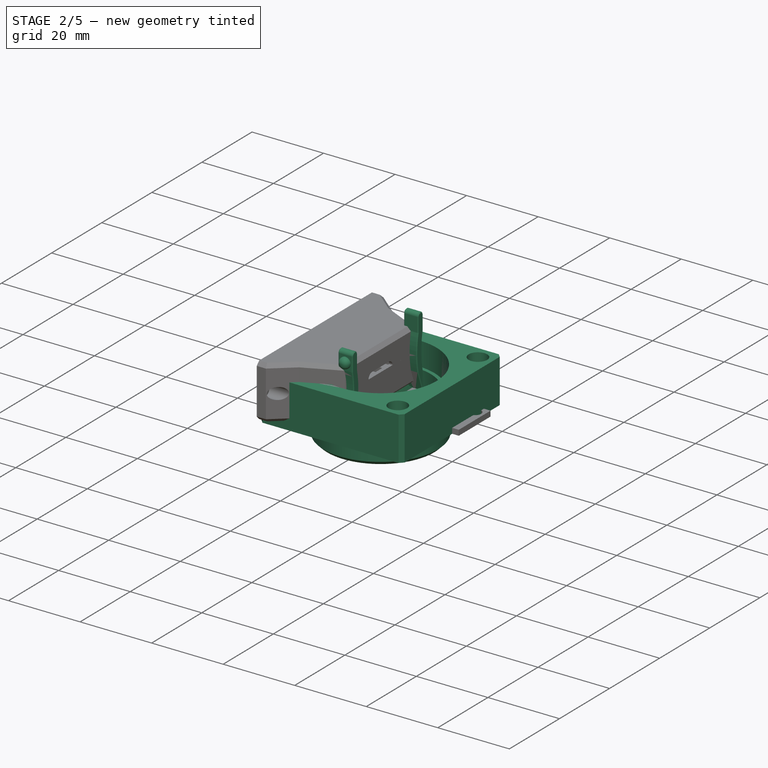
[diagram: stage 2 of 5 — iso view after this stage's code; geometry added in this stage tinted green]
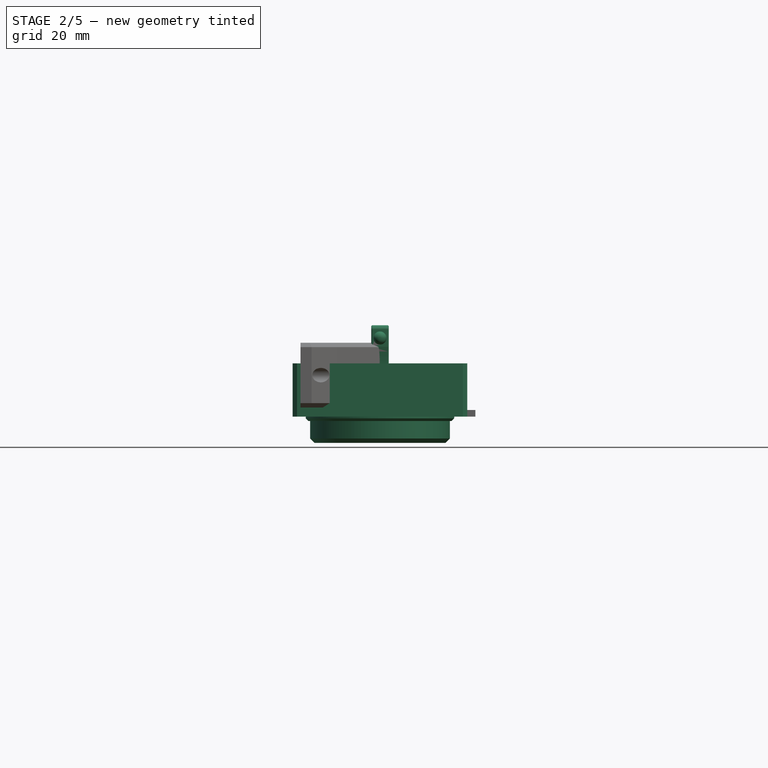
[diagram: stage 2 of 5 — front view after this stage's code; geometry added in this stage tinted green]
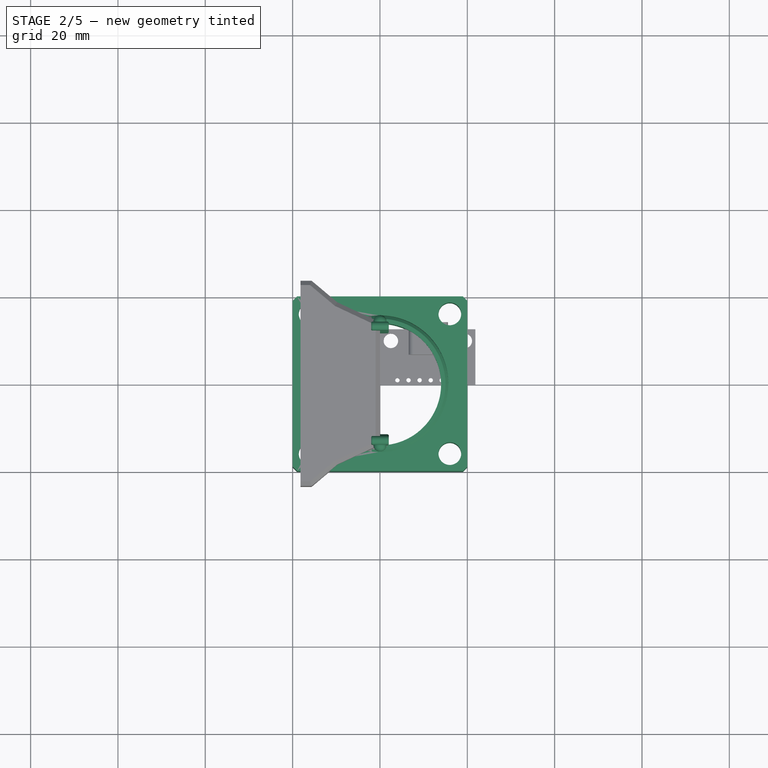
[diagram: stage 2 of 5 — top view after this stage's code; geometry added in this stage tinted green]
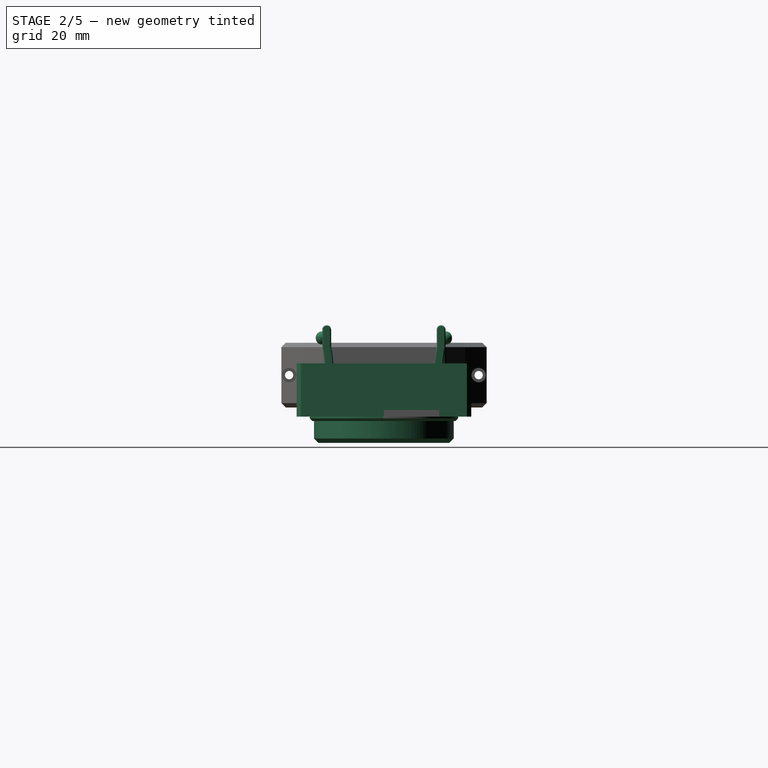
[diagram: stage 2 of 5 — right view after this stage's code; geometry added in this stage tinted green]
FEATURE [Sketcher::SketchObject] Sketch002
  FullyConstrained = false
  MapMode = 5
  Support = -> [XY_Plane001]
  sketch-geometry (9):
    g0: LineSegment StartX=-20 StartY=20 StartZ=0 EndX=20 EndY=20 EndZ=0
    g1: LineSegment StartX=20 StartY=20 StartZ=0 EndX=20 EndY=-20 EndZ=0
    g2: LineSegment StartX=20 StartY=-20 StartZ=0 EndX=-20 EndY=-20 EndZ=0
    g3: LineSegment StartX=-20 StartY=-20 StartZ=0 EndX=-20 EndY=20 EndZ=0
    g4: Circle CenterX=-16 CenterY=16 CenterZ=0 NormalX=0 NormalY=0 NormalZ=1 AngleXU=0 Radius=2.6
    g5: Circle CenterX=16 CenterY=16 CenterZ=0 NormalX=0 NormalY=0 NormalZ=1 AngleXU=0 Radius=2.6
    g6: Circle CenterX=-16 CenterY=-16 CenterZ=0 NormalX=0 NormalY=0 NormalZ=1 AngleXU=0 Radius=2.6
    g7: Circle CenterX=16 CenterY=-16 CenterZ=0 NormalX=0 NormalY=0 NormalZ=1 AngleXU=0 Radius=2.6
    g8: Circle CenterX=0 CenterY=0 CenterZ=0 NormalX=0 NormalY=0 NormalZ=1 AngleXU=0 Radius=15.662
  constraints (25):
    c: Coincident(g0,g1)
    c: Coincident(g1,g2)
    c: Coincident(g2,g3)
    c: Coincident(g3,g0)
    c: Horizontal(g0)
    c: Horizontal(g2)
    c: Vertical(g1)
    c: Vertical(g3)
    c: DistanceY(g3,g3) = 40
    c: DistanceX(g2,g2) = 40
    c: DistanceX(g0,g-1) = 20
    c: DistanceY(g2,g-1) = 20
    c: Equal(g6,g7)
    c: Equal(g7,g5)
    c: Equal(g5,g4)
    c: Radius(g6) = 2.6
    c: DistanceX(g6,g-1) = 16
    c: DistanceX(g4,g-1) = 16
    c: DistanceY(g5) = 16
    c: DistanceY(g7,g-1) = 16
    c: DistanceY(g6,g-1) = 16
    c: DistanceX(g-1,g7) = 16
    c: DistanceY(g-1,g4) = 16
    c: DistanceX(g-1,g5) = 16
    c: Coincident(g8,g-1)
FEATURE [PartDesign::Pad] Pad001
  Direction = (0,0,1)
  Length = 12.2
  Length2 = 10
  Profile = -> Sketch002
  ReferenceAxis = -> Sketch002 [N_Axis]
  Type = 0
FEATURE [PartDesign::Chamfer] Chamfer001
  Angle = 45
  Base = -> Pad001 [Edge1,Edge8,Edge2,Edge5]
  BaseFeature = -> Pad001
  ChamferType = 0
  FlipDirection = false
  Size = 1
  Size2 = 1
  SupportTransform = false
  UseAllEdges = false
FEATURE [PartDesign::Body] Body  label="Inner_Tube_Support"
  Group = -> [Sketch035,Pad012,Chamfer018]
  Origin = -> Origin
  Tip = -> Chamfer018
FEATURE [Sketcher::SketchObject] Sketch036
  FullyConstrained = true
  MapMode = 5
  Support = -> [XY_Plane016]
  sketch-geometry (2):
    g0: Circle CenterX=0 CenterY=0 CenterZ=0 NormalX=0 NormalY=0 NormalZ=1 AngleXU=0 Radius=16
    g1: Circle CenterX=0 CenterY=0 CenterZ=0 NormalX=0 NormalY=0 NormalZ=1 AngleXU=0 Radius=14
  constraints (4):
    c: Coincident(g0,g-1)
    c: Coincident(g1,g0)
    c: Diameter(g0) = 32
    c: Diameter(g1) = 28
FEATURE [PartDesign::Pad] Pad013
  Direction = (0,0,1)
  Length = 12
  Length2 = 10
  Midplane = true
  Profile = -> Sketch036
  ReferenceAxis = -> Sketch036 [N_Axis]
  Type = 0
FEATURE [Sketcher::SketchObject] Sketch037
  FullyConstrained = true
  MapMode = 5
  Support = -> [XY_Plane016]
  sketch-geometry (2):
    g0: Circle CenterX=0 CenterY=0 CenterZ=0 NormalX=0 NormalY=0 NormalZ=1 AngleXU=0 Radius=17
    g1: Circle CenterX=0 CenterY=0 CenterZ=0 NormalX=0 NormalY=0 NormalZ=1 AngleXU=0 Radius=14
  constraints (4):
    c: Coincident(g0,g-1)
    c: Coincident(g1,g0)
    c: Diameter(g0) = 34
    c: Diameter(g1) = 28
FEATURE [PartDesign::Pad] Pad014
  BaseFeature = -> Pad013
  Direction = (0,0,1)
  Length = 2
  Length2 = 10
  Midplane = true
  Profile = -> Sketch037
  ReferenceAxis = -> Sketch037 [N_Axis]
  Type = 0
FEATURE [PartDesign::Chamfer] Chamfer019
  Angle = 45
  Base = -> Pad014 [Edge5,Edge9]
  BaseFeature = -> Pad014
  ChamferType = 0
  FlipDirection = false
  Size = 0.6
  Size2 = 1
  SupportTransform = false
  UseAllEdges = false
FEATURE [PartDesign::Chamfer] Chamfer020
  Angle = 45
  Base = -> Chamfer019 [Edge5,Edge18]
  BaseFeature = -> Chamfer019
  ChamferType = 0
  FlipDirection = false
  Size = 1
  Size2 = 1
  SupportTransform = false
  UseAllEdges = false
FEATURE [Sketcher::SketchObject] Sketch
  AttachmentOffset = pos=(14.1,6,0) rot=(0,0,1;0rad)
  FullyConstrained = false
  MapMode = 5
  Placement = pos=(1.8e-15,14.1,6) rot=(0.57735,0.57735,0.57735;2.0944rad)
  Support = -> [YZ_Plane016]
  sketch-geometry (10):
    g0: LineSegment StartX=0 StartY=-1.8e-15 StartZ=0 EndX=0 EndY=10 EndZ=0
    g1: ArcOfCircle CenterX=23.9677 CenterY=5 CenterZ=0 NormalX=0 NormalY=0 NormalZ=1 AngleXU=0 Radius=24.4837 StartAngle=2.93593 EndAngle=3.34726
    g2: LineSegment StartX=-2 StartY=14 StartZ=0 EndX=-2 EndY=10 EndZ=0
    g3: ArcOfCircle CenterX=21.0373 CenterY=5 CenterZ=0 NormalX=0 NormalY=0 NormalZ=1 AngleXU=0 Radius=23.5736 StartAngle=2.92787 EndAngle=3.35532
    g4: LineSegment StartX=-2 StartY=0 StartZ=0 EndX=0 EndY=-1.8e-15 EndZ=0
    g5: ArcOfCircle CenterX=-1 CenterY=13.9336 CenterZ=0 NormalX=0 NormalY=0 NormalZ=1 AngleXU=0 Radius=1.00221 StartAngle=0.0663479 EndAngle=3.07524
    g6: LineSegment StartX=0 StartY=-5.49495 StartZ=0 EndX=0 EndY=-1.8e-15 EndZ=0
    g7: LineSegment StartX=0 StartY=14 StartZ=0 EndX=0 EndY=10 EndZ=0
    g8: LineSegment StartX=-2 StartY=0 StartZ=0 EndX=-2 EndY=0 EndZ=0
    g9: LineSegment StartX=-2 StartY=0 StartZ=0 EndX=0 EndY=-5.49495 EndZ=0
  constraints (26):
    c: PointOnObject(g0,g-2)
    c: DistanceY(g0,g0) = 10
    c: Coincident(g1,g0)
    c: Coincident(g1,g0)
    c: Coincident(g3,g2)
    c: PointOnObject(g3,g-1)
    c: Coincident(g4,g3)
    c: Coincident(g4,g1)
    c: Angle(g0,g4) = 1.5708
    c: DistanceX(g4,g4) = 2
    c: Coincident(g5,g2)
    c: PointOnObject(g6,g-2)
    c: Coincident(g6,g1)
    c: Vertical(g6)
    c: DistanceX(g2,g1) = 2
    c: DistanceX(g2,g5) = 2
    c: Coincident(g7,g5)
    c: Coincident(g7,g1)
    c: Vertical(g7)
    c: Coincident(g8,g3)
    c: Coincident(g9,g3)
    c: Coincident(g9,g6)
    c: Angle(g6,g9) = 0.349066
    c: DistanceY(g3,g2) = 10
    c: DistanceY(g1,g5) = 4
    c: Equal(g7,g2)
FEATURE [PartDesign::Pad] Pad015
  BaseFeature = -> Chamfer020
  Direction = (1,-2e-16,3e-16)
  Length = 4
  Length2 = 10
  Midplane = true
  Profile = -> Sketch
  ReferenceAxis = -> Sketch [N_Axis]
  Type = 0
FEATURE [Sketcher::SketchObject] Sketch038
  AttachmentOffset = pos=(0,18,-14.1) rot=(0,0,1;0rad)
  FullyConstrained = true
  MapMode = 5
  Placement = pos=(0,14.1,18) rot=(1,0,0;1.5708rad)
  Support = -> [XZ_Plane016]
  sketch-geometry (1):
    g0: Circle CenterX=0 CenterY=0 CenterZ=0 NormalX=0 NormalY=0 NormalZ=1 AngleXU=0 Radius=1.5
  constraints (2):
    c: Coincident(g0,g-1)
    c: Diameter(g0) = 3
FEATURE [PartDesign::Pad] Pad016
  BaseFeature = -> Pad015
  Direction = (0,-1,-2e-16)
  Length = 1.5
  Length2 = 10
  Profile = -> Sketch038
  ReferenceAxis = -> Sketch038 [N_Axis]
  Reversed = true
  Type = 0
FEATURE [PartDesign::Fillet] Fillet002
  Base = -> Pad016 [Edge54]
  BaseFeature = -> Pad016
  Radius = 1.4
  SupportTransform = false
  UseAllEdges = false
FEATURE [Sketcher::SketchObject] Sketch039
  AttachmentOffset = pos=(0,-2.5,-13.8) rot=(0,0,1;0rad)
  FullyConstrained = false
  MapMode = 5
  Placement = pos=(0,13.8,-2.5) rot=(1,0,0;1.5708rad)
  Support = -> [XZ_Plane016]
  sketch-geometry (1):
    g0: Circle CenterX=0 CenterY=-0.110051 CenterZ=0 NormalX=0 NormalY=0 NormalZ=1 AngleXU=0 Radius=1.6
  constraints (2):
    c: PointOnObject(g0,g-2)
    c: Diameter(g0) = 3.2
FEATURE [PartDesign::Pocket] Pocket016
  BaseFeature = -> Fillet002
  Direction = (0,1,2e-16)
  Length = 2
  Length2 = 5
  Profile = -> Sketch039
  ReferenceAxis = -> Sketch039 [N_Axis]
  Type = 0
FEATURE [PartDesign::Fillet] Fillet003
  Base = -> Pocket016 [Edge49]
  BaseFeature = -> Pocket016
  Radius = 1.4
  SupportTransform = false
  UseAllEdges = false
FEATURE [Sketcher::SketchObject] Sketch040
  AttachmentOffset = pos=(-14.1,6,0) rot=(0,1,0;3.14159rad)
  FullyConstrained = false
  MapMode = 5
  Placement = pos=(-4.5e-15,-14.1,6) rot=(-0.57735,0.57735,0.57735;4.18879rad)
  Support = -> [YZ_Plane016]
  sketch-geometry (10):
    g0: LineSegment StartX=0 StartY=-1.8e-15 StartZ=0 EndX=0 EndY=10 EndZ=0
    g1: ArcOfCircle CenterX=23.9677 CenterY=5 CenterZ=0 NormalX=0 NormalY=0 NormalZ=1 AngleXU=0 Radius=24.4837 StartAngle=2.93593 EndAngle=3.34726
    g2: LineSegment StartX=-2 StartY=14 StartZ=0 EndX=-2 EndY=10 EndZ=0
    g3: ArcOfCircle CenterX=21.0373 CenterY=5 CenterZ=0 NormalX=0 NormalY=0 NormalZ=1 AngleXU=0 Radius=23.5736 StartAngle=2.92787 EndAngle=3.35532
    g4: LineSegment StartX=-2 StartY=-1.8e-15 StartZ=0 EndX=0 EndY=-1.8e-15 EndZ=0
    g5: ArcOfCircle CenterX=-1 CenterY=13.9336 CenterZ=0 NormalX=0 NormalY=0 NormalZ=1 AngleXU=0 Radius=1.00221 StartAngle=0.0663479 EndAngle=3.07524
    g6: LineSegment StartX=0 StartY=-5.49495 StartZ=0 EndX=0 EndY=-1.8e-15 EndZ=0
    g7: LineSegment StartX=0 StartY=14 StartZ=0 EndX=0 EndY=10 EndZ=0
    g8: LineSegment StartX=-2 StartY=0 StartZ=0 EndX=-2 EndY=-1.8e-15 EndZ=0
    g9: LineSegment StartX=-2 StartY=-1.8e-15 StartZ=0 EndX=-2e-16 EndY=-5.49495 EndZ=0
  constraints (26):
    c: PointOnObject(g0,g-2)
    c: DistanceY(g0,g0) = 10
    c: Coincident(g1,g0)
    c: Coincident(g1,g0)
    c: Coincident(g3,g2)
    c: PointOnObject(g3,g-1)
    c: Coincident(g4,g3)
    c: Coincident(g4,g1)
    c: Angle(g0,g4) = 1.5708
    c: DistanceX(g4,g4) = 2
    c: Coincident(g5,g2)
    c: PointOnObject(g6,g-2)
    c: Coincident(g6,g1)
    c: Vertical(g6)
    c: DistanceX(g2,g1) = 2
    c: DistanceX(g2,g5) = 2
    c: Coincident(g7,g5)
    c: Coincident(g7,g1)
    c: Vertical(g7)
    c: Coincident(g8,g3)
    c: Coincident(g9,g3)
    c: Coincident(g9,g6)
    c: Angle(g6,g9) = 0.349066
    c: DistanceY(g3,g2) = 10
    c: DistanceY(g1,g5) = 4
    c: Equal(g7,g2)
FEATURE [PartDesign::Pad] Pad017
  BaseFeature = -> Fillet003
  Direction = (-1,4e-16,-2e-16)
  Length = 4
  Length2 = 10
  Midplane = true
  Profile = -> Sketch040
  ReferenceAxis = -> Sketch040 [N_Axis]
  Type = 0
FEATURE [Sketcher::SketchObject] Sketch041
  AttachmentOffset = pos=(0,18,14.1) rot=(0,1,0;3.14159rad)
  FullyConstrained = true
  MapMode = 5
  Placement = pos=(0,-14.1,18) rot=(0,0.707107,0.707107;3.14159rad)
  Support = -> [XZ_Plane016]
  sketch-geometry (1):
    g0: Circle CenterX=0 CenterY=0 CenterZ=0 NormalX=0 NormalY=0 NormalZ=1 AngleXU=0 Radius=1.5
  constraints (2):
    c: Coincident(g0,g-1)
    c: Diameter(g0) = 3
FEATURE [PartDesign::Pad] Pad018
  BaseFeature = -> Pad017
  Direction = (1e-16,1,2e-16)
  Length = 1.5
  Length2 = 10
  Profile = -> Sketch041
  ReferenceAxis = -> Sketch041 [N_Axis]
  Reversed = true
  Type = 0
FEATURE [PartDesign::Fillet] Fillet004
  Base = -> Pad018 [Edge81]
  BaseFeature = -> Pad018
  Radius = 1.4
  SupportTransform = false
  UseAllEdges = false
FEATURE [Sketcher::SketchObject] Sketch042
  AttachmentOffset = pos=(0,-2.5,13.8) rot=(0,1,0;3.14159rad)
  FullyConstrained = false
  MapMode = 5
  Placement = pos=(0,-13.8,-2.5) rot=(0,0.707107,0.707107;3.14159rad)
  Support = -> [XZ_Plane016]
  sketch-geometry (1):
    g0: Circle CenterX=0 CenterY=-0.110051 CenterZ=0 NormalX=0 NormalY=0 NormalZ=1 AngleXU=0 Radius=1.6
  constraints (2):
    c: PointOnObject(g0,g-2)
    c: Diameter(g0) = 3.2
FEATURE [PartDesign::Pocket] Pocket017
  BaseFeature = -> Fillet004
  Direction = (-1e-16,-1,-2e-16)
  Length = 2
  Length2 = 5
  Profile = -> Sketch042
  ReferenceAxis = -> Sketch042 [N_Axis]
  Type = 0
FEATURE [PartDesign::Fillet] Fillet005
  Base = -> Pocket017 [Edge79]
  BaseFeature = -> Pocket017
  Radius = 1.4
  SupportTransform = false
  UseAllEdges = false
FEATURE [PartDesign::Chamfer] Chamfer021
  Angle = 45
  Base = -> Fillet005 [Edge35,Edge33,Edge67,Edge68,Edge66,Edge69,Edge70,Edge62,Edge63,Edge64,Edge61,Edge65,Edge55,Edge56,Edge59,Edge58,Edge57,Edge27,Edge54,Edge51,Edge50,Edge52,Edge25,Edge53]
  BaseFeature = -> Fillet005
  ChamferType = 0
  FlipDirection = false
  Size = 0.2
  Size2 = 1
  SupportTransform = false
  UseAllEdges = false
FEATURE [Sketcher::SketchObject] Sketch048
  AttachmentOffset = pos=(0,0,-9) rot=(0,0,1;0rad)
  FullyConstrained = false
  MapMode = 5
  Placement = pos=(0,9,2e-15) rot=(1,0,0;1.5708rad)
  Support = -> [XZ_Plane017]
  sketch-geometry (15):
    g0: LineSegment StartX=0 StartY=0 StartZ=0 EndX=6.9 EndY=0 EndZ=0
    g1: LineSegment StartX=6.9 StartY=0 StartZ=0 EndX=6.9 EndY=2.40288 EndZ=0
    g2: LineSegment StartX=6.9 StartY=2.40288 StartZ=0 EndX=6.9 EndY=3.00288 EndZ=0
    g3: LineSegment StartX=6.9 StartY=2.40288 StartZ=0 EndX=15.3 EndY=2.40288 EndZ=0
    g4: LineSegment StartX=15.3 StartY=2.40288 StartZ=0 EndX=15.3 EndY=3.00288 EndZ=0
    g5: LineSegment StartX=7.93636 StartY=1.7 StartZ=0 EndX=14.2636 EndY=1.7 EndZ=0
    g6: LineSegment StartX=7.93636 StartY=3.70576 StartZ=0 EndX=14.2636 EndY=3.70576 EndZ=0
    g7: ArcOfCircle CenterX=7.86 CenterY=2.70288 CenterZ=0 NormalX=0 NormalY=0 NormalZ=1 AngleXU=0 Radius=1.00578 StartAngle=3.44448 EndAngle=4.78838
    g8: ArcOfCircle CenterX=7.86 CenterY=2.70288 CenterZ=0 NormalX=0 NormalY=0 NormalZ=1 AngleXU=0 Radius=1.00578 StartAngle=1.4948 EndAngle=2.83871
    g9: ArcOfCircle CenterX=14.34 CenterY=2.70288 CenterZ=0 NormalX=0 NormalY=0 NormalZ=1 AngleXU=0 Radius=1.00578 StartAngle=4.6364 EndAngle=5.9803
    g10: ArcOfCircle CenterX=14.34 CenterY=2.70288 CenterZ=0 NormalX=0 NormalY=0 NormalZ=1 AngleXU=0 Radius=1.00578 StartAngle=0.302886 EndAngle=1.64679
    g11: ArcOfCircle CenterX=7.9 CenterY=2.7 CenterZ=0 NormalX=0 NormalY=0 NormalZ=1 AngleXU=0 Radius=0.25 StartAngle=1.5708 EndAngle=4.71239
    g12: ArcOfCircle CenterX=14.3 CenterY=2.7 CenterZ=0 NormalX=0 NormalY=0 NormalZ=1 AngleXU=0 Radius=0.25 StartAngle=4.71239 EndAngle=7.85398
    g13: LineSegment StartX=7.9 StartY=2.45 StartZ=0 EndX=14.3 EndY=2.45 EndZ=0
    g14: LineSegment StartX=14.3 StartY=2.95 StartZ=0 EndX=7.9 EndY=2.95 EndZ=0
  constraints (45):
    c: Coincident(g0,g-1)
    c: PointOnObject(g0,g-1)
    c: DistanceX(g0,g0) = 6.9
    c: Coincident(g1,g0)
    c: Vertical(g1)
    c: Coincident(g2,g1)
    c: Vertical(g2)
    c: Coincident(g3,g2)
    c: Horizontal(g3)
    c: Coincident(g4,g3)
    c: Vertical(g4)
    c: DistanceX(g3,g3) = 8.4
    c: DistanceY(g2,g2) = 0.6
    c: Horizontal(g5)
    c: Horizontal(g6)
    c: Equal(g5,g6)
    c: DistanceX(g6,g6) = 6.32729
    c: Coincident(g7,g2)
    c: Coincident(g7,g5)
    c: Coincident(g8,g7)
    c: Coincident(g8,g2)
    c: Coincident(g8,g6)
    c: Coincident(g9,g4)
    c: Coincident(g9,g5)
    c: Coincident(g10,g9)
    c: Coincident(g10,g4)
    c: Coincident(g10,g6)
    c: Equal(g4,g2)
    c: Angle(g10) = 1.3439
    c: Angle(g8) = 1.3439
    c: Angle(g9) = 1.3439
    c: Angle(g7) = 1.3439
    c: DistanceY(g5,g6) = 2.00576
    c: DistanceY(g0,g5) = 1.7
    c: Tangent(g11,g13) = -1.5708
    c: Tangent(g13,g12) = -1.5708
    c: Tangent(g12,g14) = -1.5708
    c: Tangent(g14,g11) = -1.5708
    c: Equal(g11,g12)
    c: Horizontal(g13)
    c: DistanceY(g11,g11) = 0.5
    c: DistanceX(g0,g11) = 1
    c: DistanceX(g12,g3) = 1
    c: DistanceY(g5,g12) = 1
    c: DistanceY(g12,g6) = 1.00576
FEATURE [PartDesign::Pad] Pad021
  BaseFeature = -> Pocket020
  Direction = (0,-1,2e-16)
  Length = 5
  Length2 = 10
  Profile = -> Sketch048
  ReferenceAxis = -> Sketch048 [N_Axis]
  Reversed = true
  Type = 0
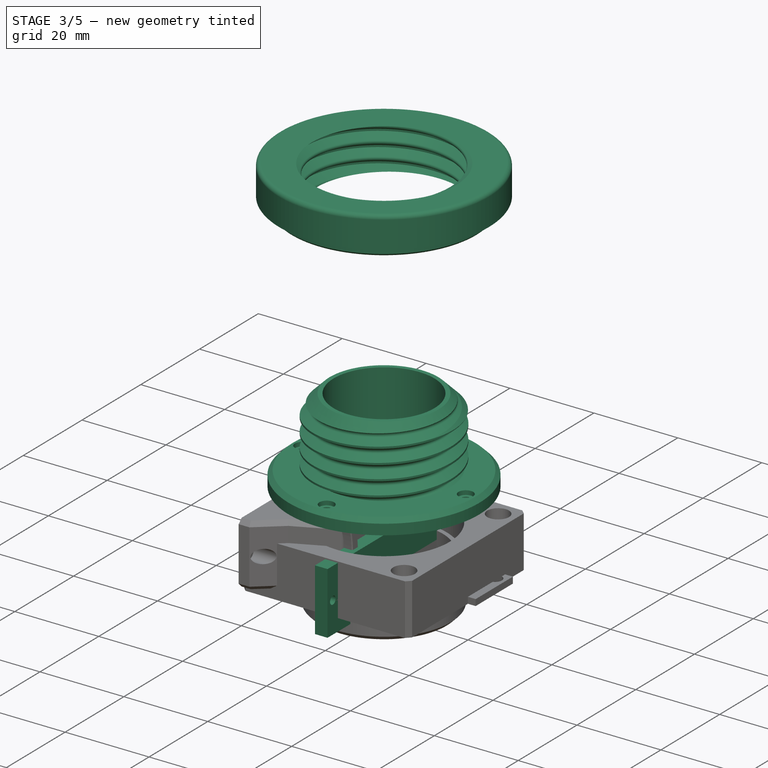
[diagram: stage 3 of 5 — iso view after this stage's code; geometry added in this stage tinted green]
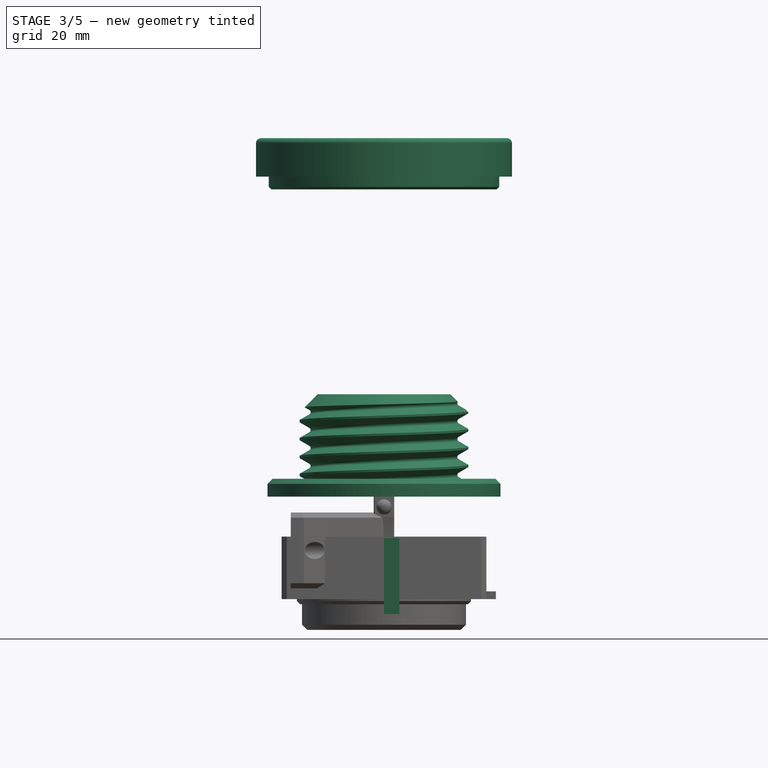
[diagram: stage 3 of 5 — front view after this stage's code; geometry added in this stage tinted green]
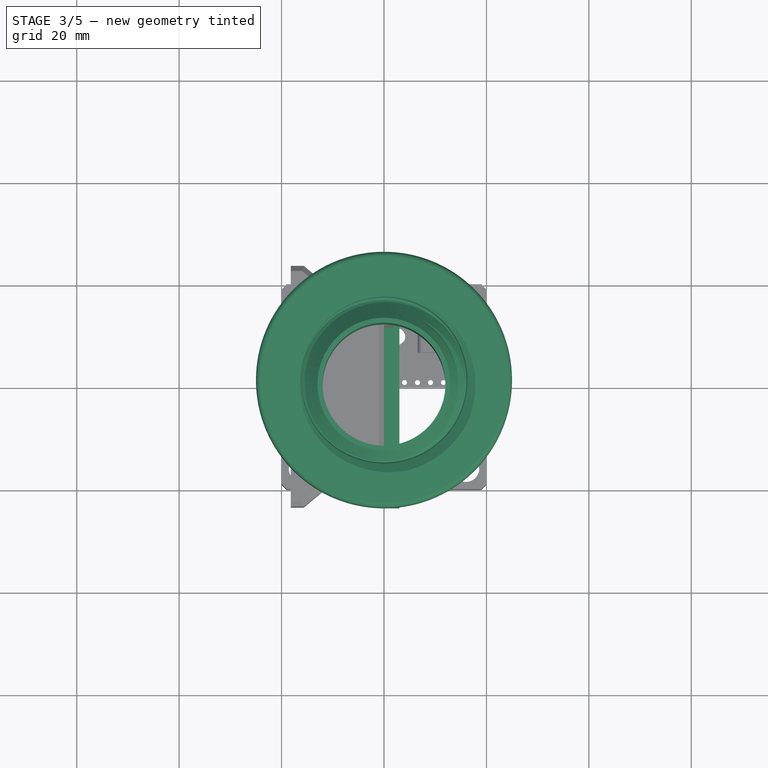
[diagram: stage 3 of 5 — top view after this stage's code; geometry added in this stage tinted green]
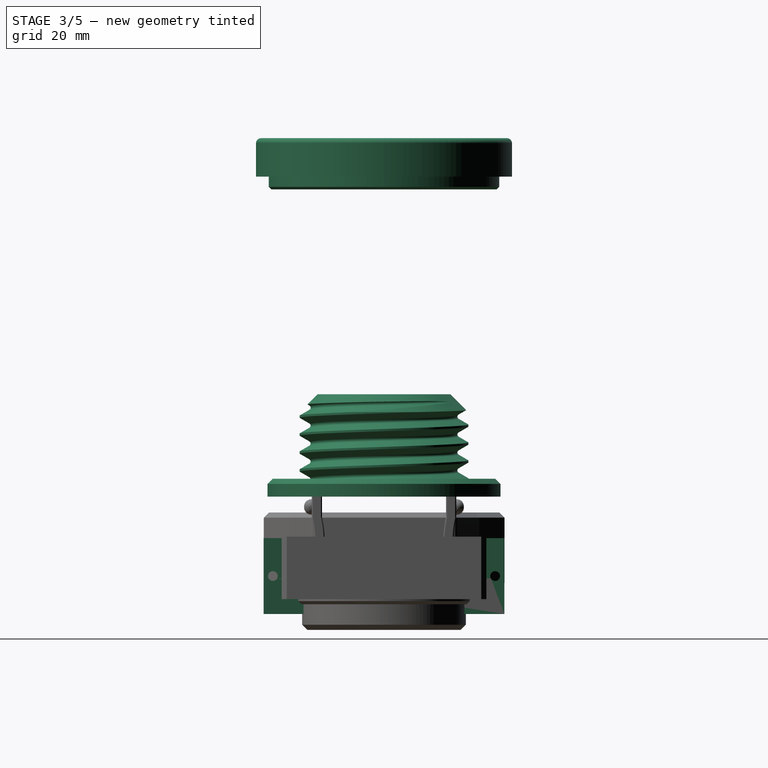
[diagram: stage 3 of 5 — right view after this stage's code; geometry added in this stage tinted green]
FEATURE [Sketcher::SketchObject] Sketch013
  FullyConstrained = true
  MapMode = 5
  Placement = pos=(0,0,0) rot=(0.57735,0.57735,0.57735;2.0944rad)
  Support = -> [YZ_Plane003]
  sketch-geometry (4):
    g0: LineSegment StartX=-23.5 StartY=11.9 StartZ=0 EndX=23.5 EndY=11.9 EndZ=0
    g1: LineSegment StartX=23.5 StartY=11.9 StartZ=0 EndX=23.5 EndY=-2.9 EndZ=0
    g2: LineSegment StartX=23.5 StartY=-2.9 StartZ=0 EndX=-23.5 EndY=-2.9 EndZ=0
    g3: LineSegment StartX=-23.5 StartY=-2.9 StartZ=0 EndX=-23.5 EndY=11.9 EndZ=0
  constraints (13):
    c: Coincident(g0,g1)
    c: Coincident(g1,g2)
    c: Coincident(g2,g3)
    c: Coincident(g3,g0)
    c: Horizontal(g0)
    c: Horizontal(g2)
    c: Vertical(g1)
    c: Vertical(g3)
    c: DistanceX(g0,g-1) = 23.5
    c: DistanceX(g-1,g0) = 23.5
    c: DistanceY(g3,g3) = 14.8
    c: DistanceY(g-1,g2) = -2.9
    c: DistanceX(g2,g2) = 47
FEATURE [Sketcher::SketchObject] Sketch014
  FullyConstrained = true
  MapMode = 5
  Placement = pos=(0,0,0) rot=(0.57735,0.57735,0.57735;2.0944rad)
  Support = -> [YZ_Plane003]
  sketch-geometry (3):
    g0: Circle CenterX=-21.7 CenterY=4.5 CenterZ=0 NormalX=0 NormalY=0 NormalZ=1 AngleXU=0 Radius=0.95
    g1: Circle CenterX=21.7 CenterY=4.5 CenterZ=0 NormalX=0 NormalY=0 NormalZ=1 AngleXU=0 Radius=0.95
    g2: LineSegment StartX=-21.7 StartY=4.5 StartZ=0 EndX=21.7 EndY=4.5 EndZ=0
  constraints (8):
    c: Equal(g0,g1)
    c: Coincident(g2,g0)
    c: Coincident(g2,g1)
    c: Horizontal(g2)
    c: DistanceY(g-1,g0) = 4.5
    c: DistanceX(g-1,g1) = 21.7
    c: DistanceX(g0,g-1) = 21.7
    c: Diameter(g0) = 1.9
FEATURE [PartDesign::Pad] Pad005
  Direction = (1,-2e-16,3e-16)
  Length = 3
  Length2 = 10
  Placement = pos=(0,0,0) rot=(0.57735,0.57735,0.57735;2.0944rad)
  Profile = -> Sketch013
  ReferenceAxis = -> Sketch013 [N_Axis]
  Type = 0
FEATURE [PartDesign::Pocket] Pocket003
  BaseFeature = -> Pad005
  Direction = (-1,2e-16,-3e-16)
  Length = 5
  Length2 = 5
  Placement = pos=(0,0,0) rot=(0.57735,0.57735,0.57735;2.0944rad)
  Profile = -> Sketch014
  ReferenceAxis = -> Sketch014 [N_Axis]
  Reversed = true
  Type = 0
FEATURE [Sketcher::SketchObject] Sketch018
  FullyConstrained = true
  MapMode = 5
  Support = -> [XY_Plane004]
  sketch-geometry (2):
    g0: Circle CenterX=0 CenterY=0 CenterZ=0 NormalX=0 NormalY=0 NormalZ=1 AngleXU=0 Radius=25
    g1: Circle CenterX=0 CenterY=0 CenterZ=0 NormalX=0 NormalY=0 NormalZ=1 AngleXU=0 Radius=11
  constraints (4):
    c: Coincident(g0,g-1)
    c: Coincident(g1,g0)
    c: Radius(g1) = 11
    c: Diameter(g0) = 50
FEATURE [PartDesign::Pad] Pad007
  Direction = (0,0,1)
  Length = 10
  Length2 = 10
  Profile = -> Sketch018
  ReferenceAxis = -> Sketch018 [N_Axis]
  Type = 0
FEATURE [Part::Cylinder] Cylinder
  Angle = 360
  AttacherType = Attacher::AttachEngine3D
  FirstAngle = 0
  Height = 30
  Placement = pos=(0,0,14) rot=(0,0,1;0rad)
  Radius = 12
  SecondAngle = 0
FEATURE [Sketcher::SketchObject] Sketch019
  FullyConstrained = true
  MapMode = 5
  Support = -> [XY_Plane004]
  sketch-geometry (2):
    g0: Circle CenterX=0 CenterY=0 CenterZ=0 NormalX=0 NormalY=0 NormalZ=1 AngleXU=0 Radius=25
    g1: Circle CenterX=0 CenterY=0 CenterZ=0 NormalX=0 NormalY=0 NormalZ=1 AngleXU=0 Radius=22.5
  constraints (4):
    c: Coincident(g0,g-1)
    c: Coincident(g1,g0)
    c: Diameter(g0) = 50
    c: Diameter(g1) = 45
FEATURE [PartDesign::Pocket] Pocket006
  BaseFeature = -> Pad007
  Direction = (0,0,-1)
  Length = 2.5
  Length2 = 5
  Profile = -> Sketch019
  ReferenceAxis = -> Sketch019 [N_Axis]
  Reversed = true
  Type = 0
FEATURE [Sketcher::SketchObject] Sketch024
  FullyConstrained = true
  MapMode = 5
  Support = -> [XY_Plane005]
  sketch-geometry (2):
    g0: Circle CenterX=0 CenterY=0 CenterZ=0 NormalX=0 NormalY=0 NormalZ=1 AngleXU=0 Radius=22.75
    g1: Circle CenterX=0 CenterY=0 CenterZ=0 NormalX=0 NormalY=0 NormalZ=1 AngleXU=0 Radius=10
  constraints (4):
    c: Coincident(g0,g-1)
    c: Coincident(g1,g0)
    c: Diameter(g1) = 20
    c: Diameter(g0) = 45.5
FEATURE [PartDesign::Pad] Pad008
  Direction = (0,0,1)
  Length = 3.5
  Length2 = 10
  Profile = -> Sketch024
  ReferenceAxis = -> Sketch024 [N_Axis]
  Type = 0
FEATURE [PartDesign::Chamfer] Chamfer006
  Angle = 45
  Base = -> Pad008 [Edge3]
  BaseFeature = -> Pad008
  ChamferType = 0
  FlipDirection = false
  Size = 1
  Size2 = 1
  SupportTransform = false
  UseAllEdges = false
FEATURE [Sketcher::SketchObject] Sketch025
  AttachmentOffset = pos=(0,0,4) rot=(0,0,1;0rad)
  FullyConstrained = true
  MapMode = 5
  Placement = pos=(0,0,4) rot=(0,0,1;0rad)
  Support = -> [XY_Plane005]
  sketch-geometry (8):
    g0: LineSegment StartX=0 StartY=0 StartZ=0 EndX=-19.5 EndY=0 EndZ=0
    g1: LineSegment StartX=0 StartY=0 StartZ=0 EndX=19.5 EndY=0 EndZ=0
    g2: LineSegment StartX=0 StartY=0 StartZ=0 EndX=0 EndY=19.5 EndZ=0
    g3: LineSegment StartX=0 StartY=0 StartZ=0 EndX=0 EndY=-19.5 EndZ=0
    g4: Circle CenterX=-19.5 CenterY=0 CenterZ=0 NormalX=0 NormalY=0 NormalZ=1 AngleXU=0 Radius=0.95
    g5: Circle CenterX=0 CenterY=-19.5 CenterZ=0 NormalX=0 NormalY=0 NormalZ=1 AngleXU=0 Radius=0.95
    g6: Circle CenterX=19.5 CenterY=0 CenterZ=0 NormalX=0 NormalY=0 NormalZ=1 AngleXU=0 Radius=0.95
    g7: Circle CenterX=0 CenterY=19.5 CenterZ=0 NormalX=0 NormalY=0 NormalZ=1 AngleXU=0 Radius=0.95
  constraints (20):
    c: Coincident(g0,g-1)
    c: PointOnObject(g0,g-1)
    c: Coincident(g1,g0)
    c: PointOnObject(g1,g-1)
    c: Coincident(g2,g0)
    c: PointOnObject(g2,g-2)
    c: Coincident(g3,g0)
    c: PointOnObject(g3,g-2)
    c: Equal(g0,g3)
    c: Equal(g3,g1)
    c: Equal(g1,g2)
    c: DistanceX(g0,g0) = 19.5
    c: Coincident(g4,g0)
    c: Coincident(g5,g3)
    c: Coincident(g6,g1)
    c: Coincident(g7,g2)
    c: Equal(g4,g7)
    c: Equal(g7,g6)
    c: Equal(g6,g5)
    c: Diameter(g4) = 1.9
FEATURE [PartDesign::Pocket] Pocket011
  BaseFeature = -> Chamfer006
  Direction = (0,0,-1)
  Length = 5
  Length2 = 5
  Profile = -> Sketch025
  ReferenceAxis = -> Sketch025 [N_Axis]
  Type = 0
FEATURE [PartDesign::Body] Body013  label="M1.7x5-Screw -9"
  BaseFeature = -> Screw002
  Group = -> [Clone006]
  Origin = -> Origin013
  Placement = pos=(0,-43.4,0) rot=(0,0,1;0rad)
  Tip = -> Clone006
FEATURE [App::DocumentObjectGroup] Group  label="Screws"
  Group = -> [Screw,Body007,Body008,Body009,Screw001,Body010,Body011,Body012,Screw002,Body013]
FEATURE [Sketcher::SketchObject] Sketch031
  AttachmentOffset = pos=(0,0,4) rot=(0,0,1;0rad)
  FullyConstrained = true
  MapMode = 5
  Placement = pos=(0,0,4) rot=(0,0,1;0rad)
  Support = -> [XY_Plane005]
  sketch-geometry (8):
    g0: LineSegment StartX=0 StartY=0 StartZ=0 EndX=-19.5 EndY=0 EndZ=0
    g1: LineSegment StartX=0 StartY=0 StartZ=0 EndX=19.5 EndY=0 EndZ=0
    g2: LineSegment StartX=0 StartY=0 StartZ=0 EndX=0 EndY=19.5 EndZ=0
    g3: LineSegment StartX=0 StartY=0 StartZ=0 EndX=0 EndY=-19.5 EndZ=0
    g4: Circle CenterX=-19.5 CenterY=0 CenterZ=0 NormalX=0 NormalY=0 NormalZ=1 AngleXU=0 Radius=1.75
    g5: Circle CenterX=0 CenterY=-19.5 CenterZ=0 NormalX=0 NormalY=0 NormalZ=1 AngleXU=0 Radius=1.75
    g6: Circle CenterX=19.5 CenterY=0 CenterZ=0 NormalX=0 NormalY=0 NormalZ=1 AngleXU=0 Radius=1.75
    g7: Circle CenterX=0 CenterY=19.5 CenterZ=0 NormalX=0 NormalY=0 NormalZ=1 AngleXU=0 Radius=1.75
  constraints (20):
    c: Coincident(g0,g-1)
    c: PointOnObject(g0,g-1)
    c: Coincident(g1,g0)
    c: PointOnObject(g1,g-1)
    c: Coincident(g2,g0)
    c: PointOnObject(g2,g-2)
    c: Coincident(g3,g0)
    c: PointOnObject(g3,g-2)
    c: Equal(g0,g3)
    c: Equal(g3,g1)
    c: Equal(g1,g2)
    c: DistanceX(g0,g0) = 19.5
    c: Coincident(g4,g0)
    c: Coincident(g5,g3)
    c: Coincident(g6,g1)
    c: Coincident(g7,g2)
    c: Equal(g4,g7)
    c: Equal(g7,g6)
    c: Equal(g6,g5)
    c: Diameter(g4) = 3.5
FEATURE [PartDesign::Pocket] Pocket013
  BaseFeature = -> Pocket011
  Direction = (0,0,-1)
  Length = 1.5
  Length2 = 5
  Profile = -> Sketch031
  ReferenceAxis = -> Sketch031 [N_Axis]
  Type = 0
FEATURE [PartDesign::Body] Body014  label="WhamBam_Spacer"
  Group = -> [Sketch034,Pad011,Fillet]
  Origin = -> Origin014
  Placement = pos=(0,0,43) rot=(0,0,1;0rad)
  Tip = -> Fillet
FEATURE [PartDesign::Fillet] Fillet001
  Base = -> Pocket006 [Edge3]
  BaseFeature = -> Pocket006
  Radius = 1
  SupportTransform = false
  UseAllEdges = false
FEATURE [PartDesign::Chamfer] Chamfer013
  Angle = 45
  Base = -> Fillet001 [Edge7]
  BaseFeature = -> Fillet001
  ChamferType = 0
  FlipDirection = false
  Size = 1
  Size2 = 1
  SupportTransform = false
  UseAllEdges = false
FEATURE [PartDesign::Body] Body003  label="Fan_Box_Hatch"
  Group = -> [Sketch013,Sketch014,Pad005,Pocket003,Sketch015,Pocket004,Sketch016,Pad006,Sketch017,Pocket005,Chamfer014,Chamfer015,Chamfer016]
  Origin = -> Origin003
  Placement = pos=(22,0,5) rot=(0,0,1;0rad)
  Tip = -> Chamfer016
FEATURE [Part::FeaturePython] ThreadedRod  label="(M33)x20-ThreadedRod001"  # Fasteners workbench fastener (typed FeaturePython)
  Placement = pos=(0,0,40) rot=(0,0,1;0rad)
  diameter = 20
  diameterCustom = 6
  invert = false
  leftHanded = false
  length = 20
  matchOuter = false
  offset = 0
  pitchCustom = 1
  thread = true
  type = 4
FEATURE [Part::MultiFuse] Fusion
  Shapes = -> [Body005,ThreadedRod]
FEATURE [Part::Cut] Cut001  label="Fan_Attachment_Screw_Fusion"
  Base = -> Fusion
  Tool = -> Cylinder
FEATURE [Part::FeaturePython] ThreadedRod003  label="(M33)x20-ThreadedRod002"  # Fasteners workbench fastener (typed FeaturePython)
  Placement = pos=(0,0,64) rot=(0,0,1;0rad)
  diameter = 20
  diameterCustom = 6
  invert = false
  leftHanded = false
  length = 20
  matchOuter = false
  offset = 0
  pitchCustom = 1
  thread = true
  type = 4
FEATURE [PartDesign::Chamfer] Chamfer017
  Angle = 45
  Base = -> Chamfer013 [Edge11]
  BaseFeature = -> Chamfer013
  ChamferType = 0
  FlipDirection = false
  Size = 0.5
  Size2 = 1
  SupportTransform = false
  UseAllEdges = false
FEATURE [PartDesign::Body] Body004  label="Fan_Fastener_Body"
  Group = -> [Sketch018,Pad007,Sketch019,Pocket006,Fillet001,Chamfer013,Chamfer017]
  Origin = -> Origin004
  Placement = pos=(0,0,50) rot=(0,0,1;0rad)
  Tip = -> Chamfer017
FEATURE [Part::Cut] Cut  label="Fan_Fastener_Cut"
  Base = -> Body004
  Placement = pos=(0,0,30) rot=(0,0,1;0rad)
  Tool = -> ThreadedRod003
FEATURE [Sketcher::SketchObject] Sketch035
  FullyConstrained = true
  MapMode = 5
  Support = -> [XY_Plane]
  sketch-geometry (2):
    g0: Circle CenterX=0 CenterY=0 CenterZ=0 NormalX=0 NormalY=0 NormalZ=1 AngleXU=0 Radius=16
    g1: Circle CenterX=0 CenterY=0 CenterZ=0 NormalX=0 NormalY=0 NormalZ=1 AngleXU=0 Radius=14
  constraints (4):
    c: Coincident(g0,g-1)
    c: Coincident(g1,g0)
    c: Diameter(g0) = 32
    c: Diameter(g1) = 28
FEATURE [PartDesign::Pad] Pad012
  Direction = (0,0,1)
  Length = 3
  Length2 = 10
  Profile = -> Sketch035
  ReferenceAxis = -> Sketch035 [N_Axis]
  Type = 0
FEATURE [PartDesign::Chamfer] Chamfer018
  Angle = 45
  Base = -> Pad012 [Edge3,Edge2]
  BaseFeature = -> Pad012
  ChamferType = 0
  FlipDirection = false
  Size = 1
  Size2 = 1
  SupportTransform = false
  UseAllEdges = false
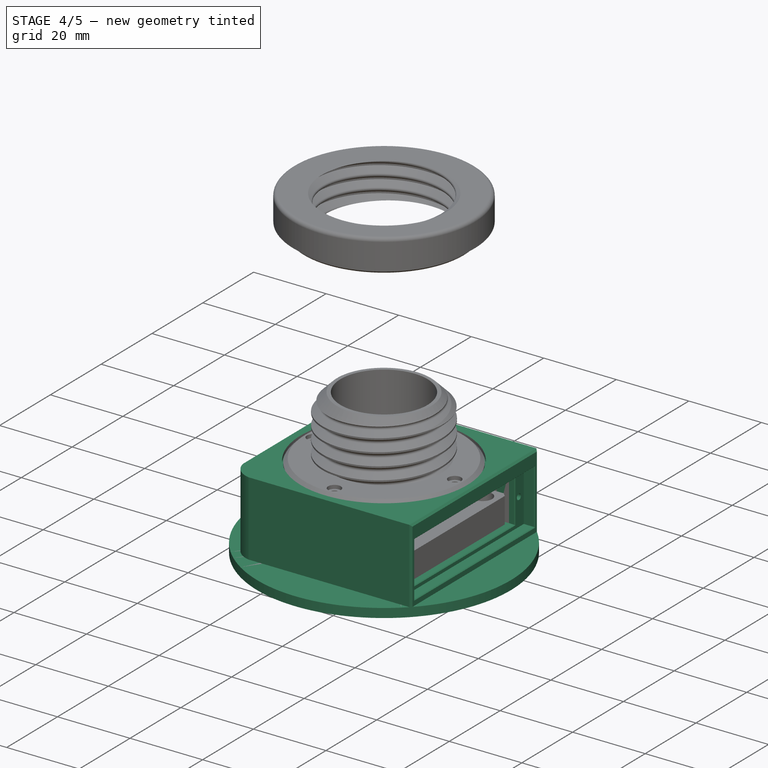
[diagram: stage 4 of 5 — iso view after this stage's code; geometry added in this stage tinted green]
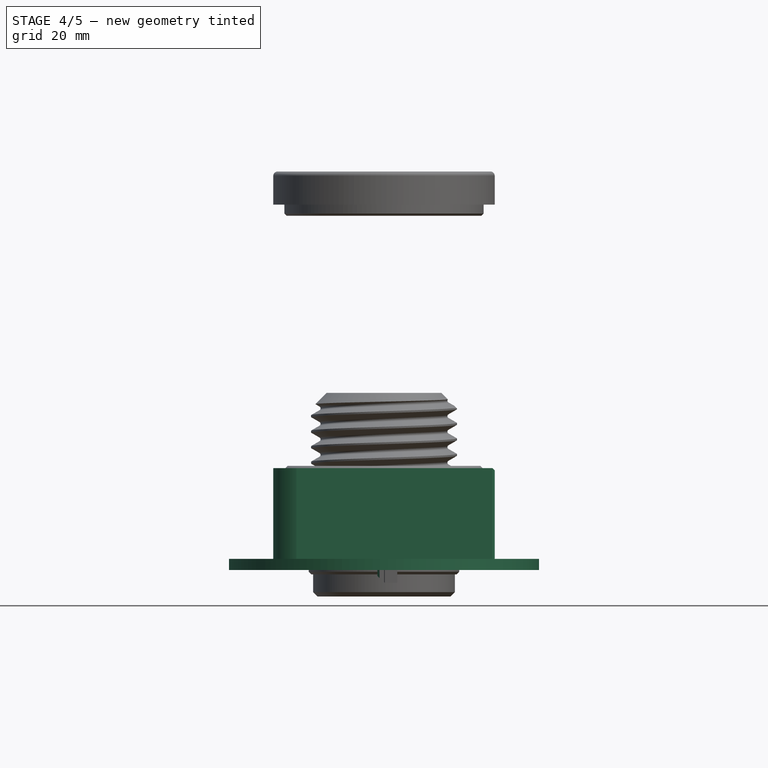
[diagram: stage 4 of 5 — front view after this stage's code; geometry added in this stage tinted green]
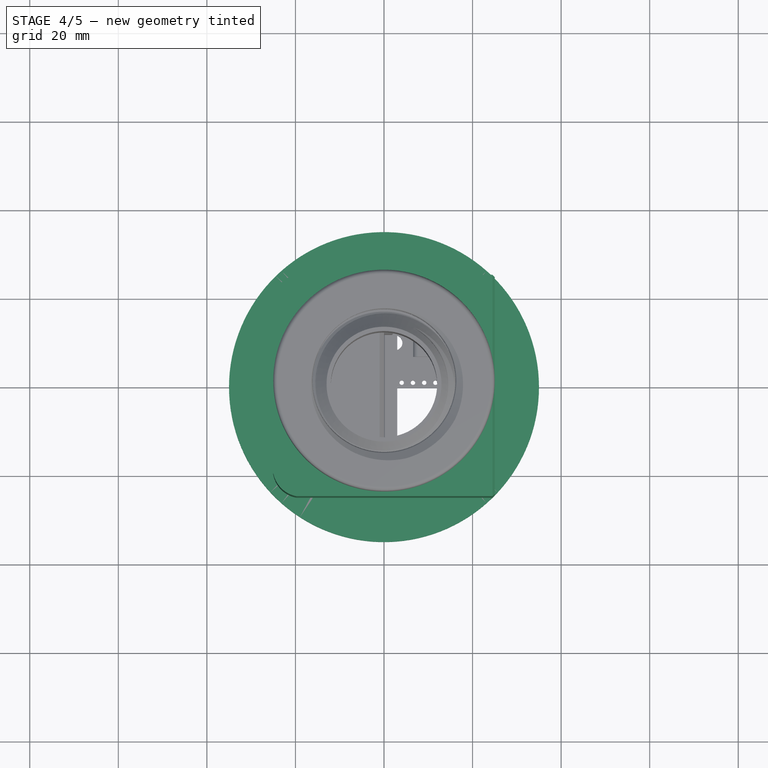
[diagram: stage 4 of 5 — top view after this stage's code; geometry added in this stage tinted green]
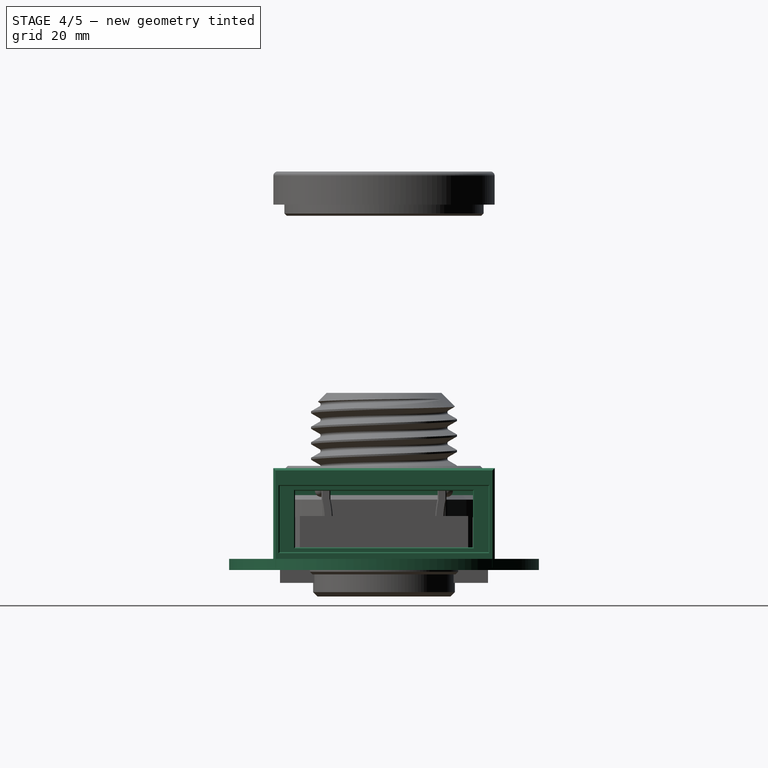
[diagram: stage 4 of 5 — right view after this stage's code; geometry added in this stage tinted green]
FEATURE [PartDesign::Body] Body001  label="Fan"
  Group = -> [Sketch002,Pad001,Chamfer001]
  Origin = -> Origin001
  Placement = pos=(0,0,3.3) rot=(0,0,1;0rad)
  Tip = -> Chamfer001
FEATURE [Sketcher::SketchObject] Sketch005
  FullyConstrained = false
  MapMode = 5
  Support = -> [XY_Plane002]
  sketch-geometry (5):
    g0: LineSegment StartX=-25 StartY=25 StartZ=0 EndX=25 EndY=25 EndZ=0
    g1: LineSegment StartX=25 StartY=25 StartZ=0 EndX=25 EndY=-25 EndZ=0
    g2: LineSegment StartX=25 StartY=-25 StartZ=0 EndX=-25 EndY=-25 EndZ=0
    g3: LineSegment StartX=-25 StartY=-25 StartZ=0 EndX=-25 EndY=25 EndZ=0
    g4: Circle CenterX=0 CenterY=0 CenterZ=0 NormalX=0 NormalY=0 NormalZ=1 AngleXU=0 Radius=15.6919
  constraints (13):
    c: Coincident(g0,g1)
    c: Coincident(g1,g2)
    c: Coincident(g2,g3)
    c: Coincident(g3,g0)
    c: Horizontal(g0)
    c: Horizontal(g2)
    c: Vertical(g1)
    c: Vertical(g3)
    c: DistanceX(g0,g-1) = 25
    c: DistanceY(g1,g-1) = 25
    c: DistanceX(g-1,g0) = 25
    c: DistanceY(g-1,g0) = 25
    c: Coincident(g4,g-1)
FEATURE [PartDesign::Pad] Pad
  Direction = (0,0,1)
  Length = 23
  Length2 = 10
  Profile = -> Sketch005
  ReferenceAxis = -> Sketch005 [N_Axis]
  Type = 0
FEATURE [Sketcher::SketchObject] Sketch006
  AttachmentOffset = pos=(0,0,20.1) rot=(0,0,1;0rad)
  FullyConstrained = false
  MapMode = 5
  Placement = pos=(0,-20.1,-4.5e-15) rot=(1,0,0;1.5708rad)
  Support = -> [XZ_Plane002]
  sketch-geometry (5):
    g0: LineSegment StartX=-20.4 StartY=17.9 StartZ=0 EndX=20.4 EndY=17.9 EndZ=0
    g1: LineSegment StartX=20.4 StartY=17.9 StartZ=0 EndX=20.4 EndY=5.1 EndZ=0
    g2: LineSegment StartX=20.4 StartY=5.1 StartZ=0 EndX=-20.4 EndY=5.1 EndZ=0
    g3: LineSegment StartX=-20.4 StartY=5.1 StartZ=0 EndX=-20.4 EndY=17.9 EndZ=0
    g4: LineSegment StartX=-20.1662 StartY=0 StartZ=0 EndX=-20.1662 EndY=23 EndZ=0
  constraints (15):
    c: Coincident(g0,g1)
    c: Coincident(g1,g2)
    c: Coincident(g2,g3)
    c: Coincident(g3,g0)
    c: Horizontal(g0)
    c: Horizontal(g2)
    c: Vertical(g1)
    c: Vertical(g3)
    c: DistanceY(g-1,g2) = 5.1
    c: DistanceY(g2,g0) = 12.8
    c: DistanceX(g-1,g1) = 20.4
    c: DistanceX(g2,g-1) = 20.4
    c: PointOnObject(g4,g-1)
    c: Vertical(g4)
    c: DistanceY(g0,g4) = 5.1
FEATURE [PartDesign::Pocket] Pocket  label="Fan_Body_Pocket"
  BaseFeature = -> Pad
  Direction = (0,1,2e-16)
  Length = 40.2
  Length2 = 5
  Profile = -> Sketch006
  ReferenceAxis = -> Sketch006 [N_Axis]
  Type = 0
FEATURE [Sketcher::SketchObject] Sketch007
  AttachmentOffset = pos=(0,0,-5) rot=(0,0,1;0rad)
  FullyConstrained = true
  MapMode = 5
  Placement = pos=(0,0,-5) rot=(0,0,1;0rad)
  Support = -> [XY_Plane002]
  sketch-geometry (2):
    g0: Circle CenterX=0 CenterY=0 CenterZ=0 NormalX=0 NormalY=0 NormalZ=1 AngleXU=0 Radius=13
    g1: Circle CenterX=0 CenterY=0 CenterZ=0 NormalX=0 NormalY=0 NormalZ=1 AngleXU=0 Radius=11
  constraints (4):
    c: Coincident(g0,g-1)
    c: Coincident(g1,g0)
    c: Radius(g1) = 11
    c: Radius(g0) = 13
FEATURE [Sketcher::SketchObject] Sketch008
  AttachmentOffset = pos=(0,1.4,0) rot=(0,0,1;0rad)
  FullyConstrained = false
  MapMode = 5
  Placement = pos=(0,-3e-16,1.4) rot=(1,0,0;1.5708rad)
  Support = -> [XZ_Plane002]
  sketch-geometry (17):
    g0: ArcOfCircle CenterX=-19.1304 CenterY=-7.02418 CenterZ=0 NormalX=0 NormalY=0 NormalZ=1 AngleXU=0 Radius=8.14856 StartAngle=0.066832 EndAngle=1.03923
    g1: ArcOfCircle CenterX=-19.1304 CenterY=-7.02418 CenterZ=0 NormalX=0 NormalY=0 NormalZ=1 AngleXU=0 Radius=6.15448 StartAngle=0.0885357 EndAngle=1.12473
    g2-g8: Circle x7 (B-spline internal-alignment scaffolding for g9; pole/knot coordinates omitted)
    g9: BSplineCurve PolesCount=7 KnotsCount=5 Degree=3 IsPeriodic=0
    g10: GeomPoint X=-16.4752 Y=-1.47192 Z=0
    g11: GeomPoint X=-17.6924 Y=-0.988756 Z=0
    g12: GeomPoint X=-17.333 Y=-0.554019 Z=0
    g13: GeomPoint X=-18.3578 Y=-0.463142 Z=0
    g14: GeomPoint X=-18.5133 Y=1.8e-15 Z=0
    g15: LineSegment StartX=-13 StartY=-6.48 StartZ=0 EndX=-11 EndY=-6.48 EndZ=0
    g16: LineSegment StartX=-18.5133 StartY=1.8e-15 StartZ=0 EndX=-15 EndY=1.8e-15 EndZ=0
  constraints (20):
    c: PointOnObject(g9,g-1)
    c: Coincident(g1,g0)
    c: DistanceY(g1,g-1) = 6.48
    c: Weight(g2) = 1
    c: Coincident(g9,g1)
    c: Equal(g2, g3-g8) x6
    c: InternalAlignment(g2-g8 -> g9) x7
    c: InternalAlignment(g10,g9)
    c: InternalAlignment(g11,g9)
    c: InternalAlignment(g13,g9)
    c: InternalAlignment(g14,g9)
    c: Coincident(g15,g1)
    c: Coincident(g15,g0)
    c: Horizontal(g15)
    c: Coincident(g16,g9)
    c: Coincident(g16,g0)
    c: Horizontal(g16)
    c: DistanceX(g0,g-1) = 15
    c: DistanceX(g15,g15) = 2
    c: DistanceX(g0,g-1) = 11
FEATURE [Sketcher::SketchObject] Sketch010
  AttachmentOffset = pos=(0,0,14.2) rot=(0,0,1;0rad)
  FullyConstrained = true
  MapMode = 5
  Placement = pos=(0,0,14.2) rot=(0,0,1;0rad)
  Support = -> [XY_Plane002]
  sketch-geometry (2):
    g0: Circle CenterX=0 CenterY=0 CenterZ=0 NormalX=0 NormalY=0 NormalZ=1 AngleXU=0 Radius=18
    g1: Circle CenterX=0 CenterY=0 CenterZ=0 NormalX=0 NormalY=0 NormalZ=1 AngleXU=0 Radius=11
  constraints (4):
    c: Coincident(g0,g-1)
    c: Coincident(g1,g0)
    c: Radius(g1) = 11
    c: Radius(g0) = 18
FEATURE [Sketcher::SketchObject] Sketch011
  AttachmentOffset = pos=(0,0,25) rot=(0,0,1;0rad)
  FullyConstrained = false
  MapMode = 5
  Placement = pos=(25,-5.6e-15,5.6e-15) rot=(0.57735,0.57735,0.57735;2.0944rad)
  Support = -> [YZ_Plane002]
  sketch-geometry (5):
    g0: LineSegment StartX=-23.6 StartY=19 StartZ=0 EndX=23.6 EndY=19 EndZ=0
    g1: LineSegment StartX=23.6 StartY=19 StartZ=0 EndX=23.6 EndY=4 EndZ=0
    g2: LineSegment StartX=23.6 StartY=4 StartZ=0 EndX=-23.6 EndY=4 EndZ=0
    g3: LineSegment StartX=-23.6 StartY=4 StartZ=0 EndX=-23.6 EndY=19 EndZ=0
    g4: LineSegment StartX=-25.0065 StartY=0 StartZ=0 EndX=-25.0065 EndY=23 EndZ=0
  constraints (15):
    c: Coincident(g0,g1)
    c: Coincident(g1,g2)
    c: Coincident(g2,g3)
    c: Coincident(g3,g0)
    c: Horizontal(g0)
    c: Horizontal(g2)
    c: Vertical(g1)
    c: Vertical(g3)
    c: DistanceY(g-1,g2) = 4
    c: DistanceX(g0,g-1) = 23.6
    c: DistanceX(g-1,g0) = 23.6
    c: PointOnObject(g4,g-1)
    c: Vertical(g4)
    c: DistanceY(g0,g4) = 4
    c: DistanceY(g3,g3) = 15
FEATURE [PartDesign::Pocket] Pocket001
  BaseFeature = -> Pocket
  Direction = (-1,2e-16,-3e-16)
  Length = 3
  Length2 = 5
  Profile = -> Sketch011
  ReferenceAxis = -> Sketch011 [N_Axis]
  Type = 0
FEATURE [Sketcher::SketchObject] Sketch012
  AttachmentOffset = pos=(0,0,22) rot=(0,0,1;0rad)
  FullyConstrained = true
  MapMode = 5
  Placement = pos=(22,-4.9e-15,4.9e-15) rot=(0.57735,0.57735,0.57735;2.0944rad)
  Support = -> [YZ_Plane002]
  sketch-geometry (7):
    g0: Circle CenterX=-21.7 CenterY=11.5 CenterZ=0 NormalX=0 NormalY=0 NormalZ=1 AngleXU=0 Radius=0.8
    g1: Circle CenterX=21.7 CenterY=11.5 CenterZ=0 NormalX=0 NormalY=0 NormalZ=1 AngleXU=0 Radius=0.8
    g2: LineSegment StartX=-21.7 StartY=11.5 StartZ=0 EndX=21.7 EndY=11.5 EndZ=0
    g3: LineSegment StartX=-20.1 StartY=17.9 StartZ=0 EndX=20.1 EndY=17.9 EndZ=0
    g4: LineSegment StartX=20.1 StartY=17.9 StartZ=0 EndX=20.1 EndY=5.1 EndZ=0
    g5: LineSegment StartX=20.1 StartY=5.1 StartZ=0 EndX=-20.1 EndY=5.1 EndZ=0
    g6: LineSegment StartX=-20.1 StartY=5.1 StartZ=0 EndX=-20.1 EndY=17.9 EndZ=0
  constraints (20):
    c: Equal(g0,g1)
    c: Coincident(g2,g0)
    c: Coincident(g2,g1)
    c: Horizontal(g2)
    c: DistanceY(g-1,g0) = 11.5
    c: DistanceX(g-1,g1) = 21.7
    c: DistanceX(g0,g-1) = 21.7
    c: Coincident(g3,g4)
    c: Coincident(g4,g5)
    c: Coincident(g5,g6)
    c: Coincident(g6,g3)
    c: Horizontal(g3)
    c: Horizontal(g5)
    c: Vertical(g4)
    c: Vertical(g6)
    c: DistanceX(g5,g-1) = 20.1
    c: DistanceX(g-1,g4) = 20.1
    c: DistanceY(g4,g3) = 12.8
    c: DistanceY(g-1,g4) = 5.1
    c: Diameter(g0) = 1.6
FEATURE [PartDesign::Pocket] Pocket002
  BaseFeature = -> Pocket001
  Direction = (-1,2e-16,-3e-16)
  Length = 5
  Length2 = 5
  Profile = -> Sketch012
  ReferenceAxis = -> Sketch012 [N_Axis]
  Type = 0
FEATURE [Sketcher::SketchObject] Sketch015
  AttachmentOffset = pos=(0,0,3) rot=(0,0,1;0rad)
  FullyConstrained = true
  MapMode = 5
  Placement = pos=(3,-7e-16,7e-16) rot=(0.57735,0.57735,0.57735;2.0944rad)
  Support = -> [YZ_Plane003]
  sketch-geometry (3):
    g0: Circle CenterX=-21.7 CenterY=4.5 CenterZ=0 NormalX=0 NormalY=0 NormalZ=1 AngleXU=0 Radius=0.95
    g1: Circle CenterX=21.7 CenterY=4.5 CenterZ=0 NormalX=0 NormalY=0 NormalZ=1 AngleXU=0 Radius=0.95
    g2: LineSegment StartX=-21.7 StartY=4.5 StartZ=0 EndX=21.7 EndY=4.5 EndZ=0
  constraints (8):
    c: Equal(g0,g1)
    c: Coincident(g2,g0)
    c: Coincident(g2,g1)
    c: Horizontal(g2)
    c: DistanceY(g-1,g0) = 4.5
    c: DistanceX(g-1,g1) = 21.7
    c: DistanceX(g0,g-1) = 21.7
    c: Diameter(g0) = 1.9
FEATURE [PartDesign::Pocket] Pocket004
  BaseFeature = -> Pocket003
  Direction = (-1,2e-16,-3e-16)
  Length = 2
  Length2 = 5
  Placement = pos=(0,0,0) rot=(0.57735,0.57735,0.57735;2.0944rad)
  Profile = -> Sketch015
  ReferenceAxis = -> Sketch015 [N_Axis]
  Type = 0
FEATURE [Sketcher::SketchObject] Sketch016
  FullyConstrained = false
  MapMode = 5
  Placement = pos=(0,0,0) rot=(0.57735,0.57735,0.57735;2.0944rad)
  Support = -> [YZ_Plane003]
  sketch-geometry (5):
    g0: LineSegment StartX=-21.7 StartY=0 StartZ=0 EndX=21.7 EndY=0 EndZ=0
    g1: LineSegment StartX=-20 StartY=10.8 StartZ=0 EndX=20 EndY=10.8 EndZ=0
    g2: LineSegment StartX=20 StartY=10.8 StartZ=0 EndX=20 EndY=-1.8 EndZ=0
    g3: LineSegment StartX=20 StartY=-1.8 StartZ=0 EndX=-20 EndY=-1.8 EndZ=0
    g4: LineSegment StartX=-20 StartY=-1.8 StartZ=0 EndX=-20 EndY=10.8 EndZ=0
  constraints (13):
    c: Horizontal(g0)
    c: Coincident(g1,g2)
    c: Coincident(g2,g3)
    c: Coincident(g3,g4)
    c: Coincident(g4,g1)
    c: Horizontal(g1)
    c: Horizontal(g3)
    c: Vertical(g2)
    c: Vertical(g4)
    c: DistanceX(g3,g-1) = 20
    c: DistanceX(g-1,g2) = 20
    c: DistanceY(g2,g1) = 12.6
    c: DistanceY(g-1,g2) = -1.8
FEATURE [PartDesign::Pad] Pad006
  BaseFeature = -> Pocket004
  Direction = (1,-2e-16,3e-16)
  Length = 1.5
  Length2 = 10
  Placement = pos=(0,0,0) rot=(0.57735,0.57735,0.57735;2.0944rad)
  Profile = -> Sketch016
  ReferenceAxis = -> Sketch016 [N_Axis]
  Reversed = true
  Type = 0
FEATURE [Sketcher::SketchObject] Sketch017
  AttachmentOffset = pos=(15,4.5,3) rot=(0,0,1;0rad)
  FullyConstrained = true
  MapMode = 5
  Placement = pos=(3,15,4.5) rot=(0.57735,0.57735,0.57735;2.0944rad)
  Support = -> [YZ_Plane003]
  sketch-geometry (1):
    g0: Circle CenterX=0 CenterY=0 CenterZ=0 NormalX=0 NormalY=0 NormalZ=1 AngleXU=0 Radius=2.5
  constraints (2):
    c: Coincident(g0,g-1)
    c: Radius(g0) = 2.5
FEATURE [PartDesign::Pocket] Pocket005  label="Cable_Hole"
  BaseFeature = -> Pad006
  Direction = (-1,2e-16,-3e-16)
  Length = 10
  Length2 = 5
  Placement = pos=(0,0,0) rot=(0.57735,0.57735,0.57735;2.0944rad)
  Profile = -> Sketch017
  ReferenceAxis = -> Sketch017 [N_Axis]
  Type = 0
FEATURE [Sketcher::SketchObject] Sketch020
  FullyConstrained = true
  MapMode = 5
  Support = -> [XY_Plane002]
  sketch-geometry (1):
    g0: Circle CenterX=0 CenterY=0 CenterZ=0 NormalX=0 NormalY=0 NormalZ=1 AngleXU=0 Radius=23
  constraints (2):
    c: Coincident(g0,g-1)
    c: Radius(g0) = 23
FEATURE [PartDesign::Pocket] Pocket007
  BaseFeature = -> Pocket002
  Direction = (0,0,-1)
  Length = 1
  Length2 = 5
  Profile = -> Sketch020
  ReferenceAxis = -> Sketch020 [N_Axis]
  Reversed = true
  Type = 0
FEATURE [Sketcher::SketchObject] Sketch021
  AttachmentOffset = pos=(0,0,23.01) rot=(0,0,1;0rad)
  FullyConstrained = true
  MapMode = 5
  Placement = pos=(0,0,23.01) rot=(0,0,1;0rad)
  Support = -> [XY_Plane002]
  sketch-geometry (1):
    g0: Circle CenterX=0 CenterY=0 CenterZ=0 NormalX=0 NormalY=0 NormalZ=1 AngleXU=0 Radius=23
  constraints (2):
    c: Coincident(g0,g-1)
    c: Radius(g0) = 23
FEATURE [PartDesign::Pocket] Pocket008
  BaseFeature = -> Pocket007
  Direction = (0,0,-1)
  Length = 1
  Length2 = 5
  Profile = -> Sketch021
  ReferenceAxis = -> Sketch021 [N_Axis]
  Type = 0
FEATURE [Sketcher::SketchObject] Sketch022
  FullyConstrained = true
  MapMode = 5
  Support = -> [XY_Plane002]
  sketch-geometry (8):
    g0: LineSegment StartX=0 StartY=0 StartZ=0 EndX=-19.5 EndY=0 EndZ=0
    g1: LineSegment StartX=0 StartY=0 StartZ=0 EndX=19.5 EndY=0 EndZ=0
    g2: LineSegment StartX=0 StartY=0 StartZ=0 EndX=0 EndY=19.5 EndZ=0
    g3: LineSegment StartX=0 StartY=0 StartZ=0 EndX=0 EndY=-19.5 EndZ=0
    g4: Circle CenterX=-19.5 CenterY=0 CenterZ=0 NormalX=0 NormalY=0 NormalZ=1 AngleXU=0 Radius=0.8
    g5: Circle CenterX=0 CenterY=-19.5 CenterZ=0 NormalX=0 NormalY=0 NormalZ=1 AngleXU=0 Radius=0.8
    g6: Circle CenterX=19.5 CenterY=0 CenterZ=0 NormalX=0 NormalY=0 NormalZ=1 AngleXU=0 Radius=0.8
    g7: Circle CenterX=0 CenterY=19.5 CenterZ=0 NormalX=0 NormalY=0 NormalZ=1 AngleXU=0 Radius=0.8
  constraints (20):
    c: Coincident(g0,g-1)
    c: PointOnObject(g0,g-1)
    c: Coincident(g1,g0)
    c: PointOnObject(g1,g-1)
    c: Coincident(g2,g0)
    c: PointOnObject(g2,g-2)
    c: Coincident(g3,g0)
    c: PointOnObject(g3,g-2)
    c: Equal(g0,g3)
    c: Equal(g3,g1)
    c: Equal(g1,g2)
    c: DistanceX(g0,g0) = 19.5
    c: Coincident(g4,g0)
    c: Coincident(g5,g3)
    c: Coincident(g6,g1)
    c: Coincident(g7,g2)
    c: Equal(g4,g7)
    c: Equal(g7,g6)
    c: Equal(g6,g5)
    c: Diameter(g4) = 1.6
FEATURE [PartDesign::Pocket] Pocket009
  BaseFeature = -> Pocket008
  Direction = (0,0,-1)
  Length = 5
  Length2 = 5
  Profile = -> Sketch022
  ReferenceAxis = -> Sketch022 [N_Axis]
  Reversed = true
  Type = 0
FEATURE [Sketcher::SketchObject] Sketch023
  AttachmentOffset = pos=(0,0,23) rot=(0,0,1;0rad)
  FullyConstrained = true
  MapMode = 5
  Placement = pos=(0,0,23) rot=(0,0,1;0rad)
  Support = -> [XY_Plane002]
  sketch-geometry (8):
    g0: LineSegment StartX=0 StartY=0 StartZ=0 EndX=-19.5 EndY=0 EndZ=0
    g1: LineSegment StartX=0 StartY=0 StartZ=0 EndX=19.5 EndY=0 EndZ=0
    g2: LineSegment StartX=0 StartY=0 StartZ=0 EndX=0 EndY=19.5 EndZ=0
    g3: LineSegment StartX=0 StartY=0 StartZ=0 EndX=0 EndY=-19.5 EndZ=0
    g4: Circle CenterX=-19.5 CenterY=0 CenterZ=0 NormalX=0 NormalY=0 NormalZ=1 AngleXU=0 Radius=0.8
    g5: Circle CenterX=0 CenterY=-19.5 CenterZ=0 NormalX=0 NormalY=0 NormalZ=1 AngleXU=0 Radius=0.8
    g6: Circle CenterX=19.5 CenterY=0 CenterZ=0 NormalX=0 NormalY=0 NormalZ=1 AngleXU=0 Radius=0.8
    g7: Circle CenterX=0 CenterY=19.5 CenterZ=0 NormalX=0 NormalY=0 NormalZ=1 AngleXU=0 Radius=0.8
  constraints (20):
    c: Coincident(g0,g-1)
    c: PointOnObject(g0,g-1)
    c: Coincident(g1,g0)
    c: PointOnObject(g1,g-1)
    c: Coincident(g2,g0)
    c: PointOnObject(g2,g-2)
    c: Coincident(g3,g0)
    c: PointOnObject(g3,g-2)
    c: Equal(g0,g3)
    c: Equal(g3,g1)
    c: Equal(g1,g2)
    c: DistanceX(g0,g0) = 19.5
    c: Coincident(g4,g0)
    c: Coincident(g5,g3)
    c: Coincident(g6,g1)
    c: Coincident(g7,g2)
    c: Equal(g4,g7)
    c: Equal(g7,g6)
    c: Equal(g6,g5)
    c: Diameter(g4) = 1.6
FEATURE [PartDesign::Pocket] Pocket010
  BaseFeature = -> Pocket009
  Direction = (0,0,-1)
  Length = 5
  Length2 = 5
  Profile = -> Sketch023
  ReferenceAxis = -> Sketch023 [N_Axis]
  Type = 0
FEATURE [PartDesign::Body] Body006  label="Fan_Attachment_Inner_Tube"
  Group = -> [Sketch026,Sketch027,Sketch028,Sketch029,Pad009,Chamfer007,Pad010,Sketch030,Pocket012,Sketch032,Pocket014,Chamfer011]
  Origin = -> Origin006
  Placement = pos=(0,0,-1) rot=(0,0,1;0rad)
  Tip = -> Chamfer011
FEATURE [Sketcher::SketchObject] Sketch033
  FullyConstrained = false
  MapMode = 5
  Support = -> [XY_Plane002]
  sketch-geometry (14):
    g0: LineSegment StartX=-19 StartY=25.1 StartZ=0 EndX=-25.1 EndY=25.1 EndZ=0
    g1: LineSegment StartX=-25.1 StartY=19 StartZ=0 EndX=-25.1 EndY=25.1 EndZ=0
    g2: LineSegment StartX=-25.1 StartY=-19 StartZ=0 EndX=-25.1 EndY=-25.1 EndZ=0
    g3: LineSegment StartX=-19 StartY=-25.1 StartZ=0 EndX=-25.1 EndY=-25.1 EndZ=0
    g4: ArcOfCircle CenterX=-18.5936 CenterY=-18.5936 CenterZ=0 NormalX=0 NormalY=0 NormalZ=1 AngleXU=0 Radius=6.51907 StartAngle=3.20397 EndAngle=4.65001
    g5: ArcOfCircle CenterX=-18.5936 CenterY=18.5936 CenterZ=0 NormalX=0 NormalY=0 NormalZ=1 AngleXU=0 Radius=6.51907 StartAngle=1.63318 EndAngle=3.07921
    g6: LineSegment StartX=-18.5936 StartY=18.5936 StartZ=0 EndX=0 EndY=18.5936 EndZ=0
    g7: LineSegment StartX=-18.5936 StartY=18.5936 StartZ=0 EndX=-18.5936 EndY=0 EndZ=0
    g8: LineSegment StartX=-18.5936 StartY=0 StartZ=0 EndX=-18.5936 EndY=-18.5936 EndZ=0
    g9: LineSegment StartX=-18.5936 StartY=-18.5936 StartZ=0 EndX=-3.6e-15 EndY=-18.5936 EndZ=0
    g10: LineSegment StartX=-25.1 StartY=-19 StartZ=0 EndX=-25.1 EndY=0 EndZ=0
    g11: LineSegment StartX=-25.1 StartY=19 StartZ=0 EndX=-25.1 EndY=0 EndZ=0
    g12: LineSegment StartX=-19 StartY=25.1 StartZ=0 EndX=0 EndY=25.1 EndZ=0
    g13: LineSegment StartX=-19 StartY=-25.1 StartZ=0 EndX=0 EndY=-25.1 EndZ=0
  constraints (43):
    c: Horizontal(g0)
    c: Coincident(g1,g0)
    c: Vertical(g1)
    c: Vertical(g2)
    c: Coincident(g3,g2)
    c: Horizontal(g3)
    c: Equal(g0,g3)
    c: Equal(g1,g2)
    c: Coincident(g4,g3)
    c: Coincident(g4,g2)
    c: Coincident(g5,g1)
    c: Coincident(g5,g0)
    c: Coincident(g6,g5)
    c: PointOnObject(g6,g-2)
    c: Horizontal(g6)
    c: Coincident(g7,g5)
    c: PointOnObject(g7,g-1)
    c: Vertical(g7)
    c: Coincident(g8,g7)
    c: Coincident(g8,g4)
    c: Coincident(g9,g4)
    c: Horizontal(g9)
    c: Angle(g9,g8) = 1.5708
    c: Equal(g8,g7)
    c: Equal(g6,g9)
    c: Coincident(g10,g2)
    c: PointOnObject(g10,g-1)
    c: Vertical(g10)
    c: Coincident(g11,g1)
    c: Coincident(g11,g10)
    c: Vertical(g11)
    c: DistanceY(g10,g10) = 19
    c: DistanceY(g11,g11) = 19
    c: Coincident(g12,g0)
    c: PointOnObject(g12,g-2)
    c: Horizontal(g12)
    c: Coincident(g13,g3)
    c: PointOnObject(g13,g-2)
    c: Horizontal(g13)
    c: DistanceX(g13,g13) = 19
    c: DistanceX(g12,g12) = 19
    c: DistanceX(g2,g-1) = 25.1
    c: DistanceY(g3,g-1) = 25.1
FEATURE [PartDesign::Pocket] Pocket015
  BaseFeature = -> Pocket010
  Direction = (0,0,-1)
  Length = 5
  Length2 = 5
  Profile = -> Sketch033
  ReferenceAxis = -> Sketch033 [N_Axis]
  Reversed = true
  Type = 1
FEATURE [PartDesign::Chamfer] Chamfer012
  Angle = 45
  Base = -> Pocket015 [Edge44,Edge45,Edge46,Edge43,Edge13,Edge14,Edge15,Edge16]
  BaseFeature = -> Pocket015
  ChamferType = 0
  FlipDirection = false
  Size = 0.2
  Size2 = 1
  SupportTransform = false
  UseAllEdges = false
FEATURE [Sketcher::SketchObject] Sketch034
  FullyConstrained = false
  MapMode = 5
  Support = -> [XY_Plane014]
  sketch-geometry (2):
    g0: Circle CenterX=0 CenterY=0 CenterZ=0 NormalX=0 NormalY=0 NormalZ=1 AngleXU=0 Radius=35
    g1: Circle CenterX=0 CenterY=-0.283588 CenterZ=0 NormalX=0 NormalY=0 NormalZ=1 AngleXU=0 Radius=22.75
  constraints (4):
    c: Coincident(g0,g-1)
    c: Diameter(g0) = 70
    c: PointOnObject(g1,g-2)
    c: Diameter(g1) = 45.5
FEATURE [PartDesign::Pad] Pad011
  Direction = (0,0,1)
  Length = 2.5
  Length2 = 10
  Profile = -> Sketch034
  ReferenceAxis = -> Sketch034 [N_Axis]
  Type = 0
FEATURE [PartDesign::Body] Body015  label="WhamBam_Spacer_Clone"
  BaseFeature = -> Body014
  Group = -> [Clone007]
  Origin = -> Origin015
  Placement = pos=(0,0,29) rot=(0,0,1;0rad)
  Tip = -> Clone007
FEATURE [PartDesign::Chamfer] Chamfer
  Angle = 45
  Base = -> Chamfer012 [Edge5,Edge6,Edge7,Edge8]
  BaseFeature = -> Chamfer012
  ChamferType = 0
  FlipDirection = false
  Size = 0.5
  Size2 = 1
  SupportTransform = false
  UseAllEdges = false
FEATURE [PartDesign::Body] Body002  label="Fan_Box"
  Group = -> [Sketch005,Pad,Sketch006,Pocket,Sketch007,Sketch008,Sketch010,Sketch011,Pocket001,Sketch012,Pocket002,Sketch020,Pocket007,Sketch021,Pocket008,Sketch022,Pocket009,Sketch023,Pocket010,Sketch033,Pocket015,Chamfer012,Chamfer]
  Origin = -> Origin002
  Placement = pos=(0,0,-2) rot=(0,0,1;0rad)
  Tip = -> Chamfer
FEATURE [PartDesign::Chamfer] Chamfer014
  Angle = 45
  Base = -> Pocket005 [Edge36,Edge20]
  BaseFeature = -> Pocket005
  ChamferType = 0
  FlipDirection = false
  Placement = pos=(0,0,0) rot=(0.57735,0.57735,0.57735;2.0944rad)
  Size = 0.5
  Size2 = 1
  SupportTransform = false
  UseAllEdges = false
FEATURE [PartDesign::Chamfer] Chamfer015
  Angle = 45
  Base = -> Chamfer014 [Edge40,Edge38,Edge36,Edge41]
  BaseFeature = -> Chamfer014
  ChamferType = 0
  FlipDirection = false
  Placement = pos=(0,0,0) rot=(0.57735,0.57735,0.57735;2.0944rad)
  Size = 0.5
  Size2 = 1
  SupportTransform = false
  UseAllEdges = false
FEATURE [PartDesign::Chamfer] Chamfer016
  Angle = 45
  Base = -> Chamfer015 [Edge13,Edge14,Edge11,Edge12]
  BaseFeature = -> Chamfer015
  ChamferType = 0
  FlipDirection = false
  Placement = pos=(0,0,0) rot=(0.57735,0.57735,0.57735;2.0944rad)
  Size = 0.2
  Size2 = 1
  SupportTransform = false
  UseAllEdges = false
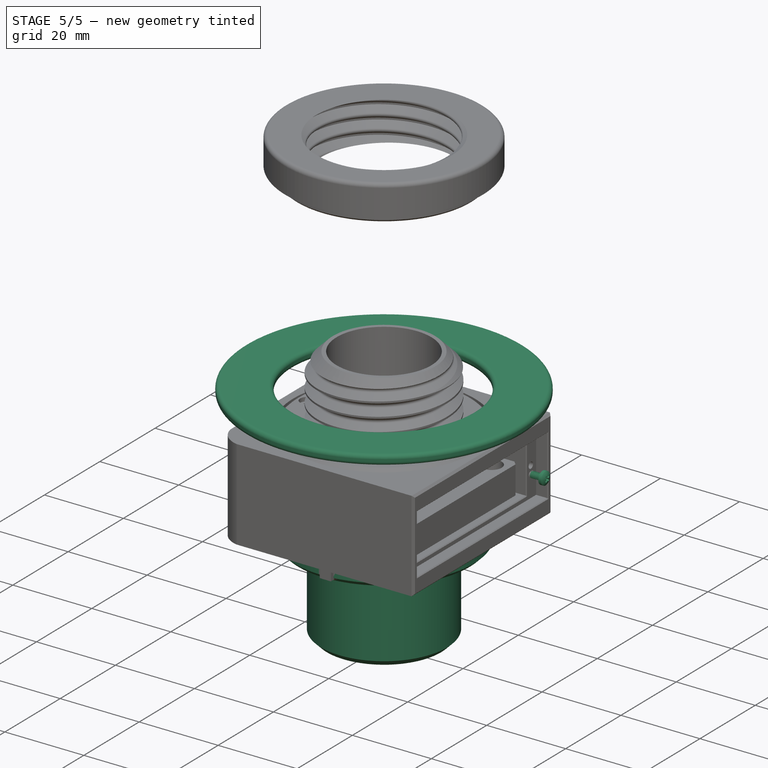
[diagram: stage 5 of 5 — iso view after this stage's code; geometry added in this stage tinted green]
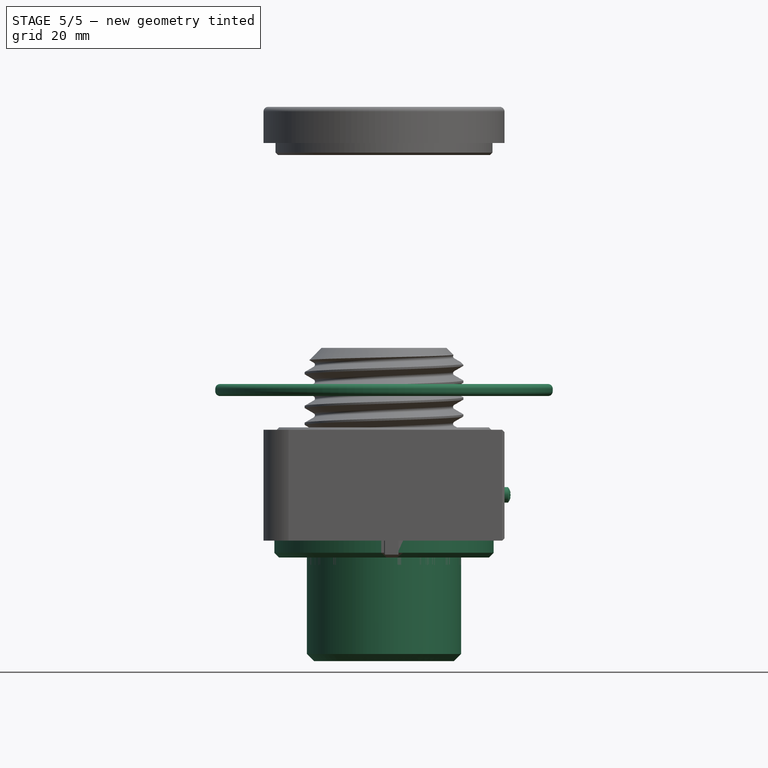
[diagram: stage 5 of 5 — front view after this stage's code; geometry added in this stage tinted green]
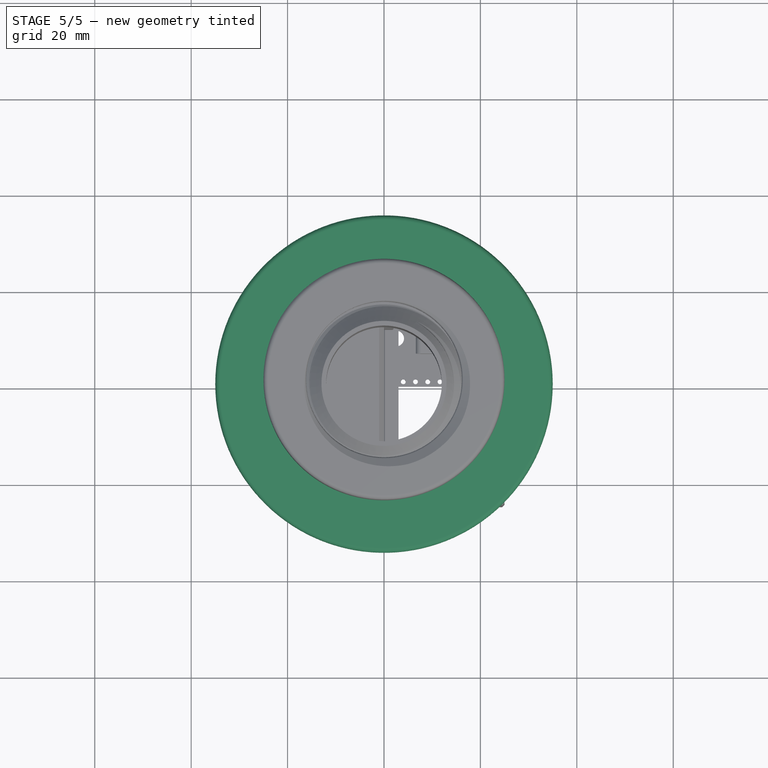
[diagram: stage 5 of 5 — top view after this stage's code; geometry added in this stage tinted green]
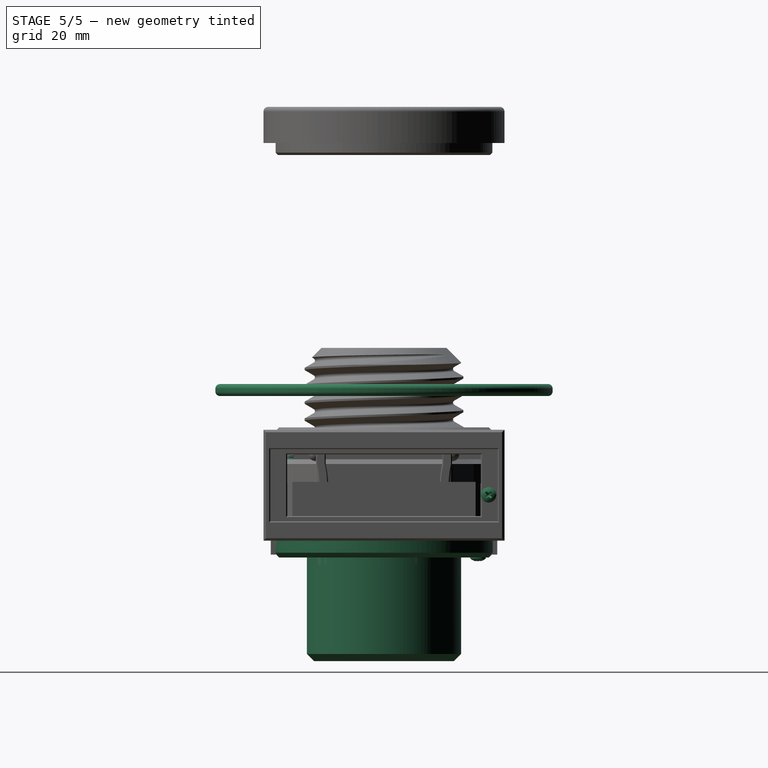
[diagram: stage 5 of 5 — right view after this stage's code; geometry added in this stage tinted green]
FEATURE [Sketcher::SketchObject] Sketch026
  FullyConstrained = true
  MapMode = 5
  Support = -> [XY_Plane006]
  sketch-geometry (2):
    g0: Circle CenterX=0 CenterY=0 CenterZ=0 NormalX=0 NormalY=0 NormalZ=1 AngleXU=0 Radius=16
    g1: Circle CenterX=0 CenterY=0 CenterZ=0 NormalX=0 NormalY=0 NormalZ=1 AngleXU=0 Radius=14
  constraints (4):
    c: Coincident(g0,g-1)
    c: Coincident(g1,g0)
    c: Diameter(g0) = 32
    c: Diameter(g1) = 28
FEATURE [Sketcher::SketchObject] Sketch027
  AttachmentOffset = pos=(0,-1,0) rot=(0,0,1;0rad)
  FullyConstrained = false
  MapMode = 5
  Placement = pos=(0,2e-16,-1) rot=(1,0,0;1.5708rad)
  Support = -> [XZ_Plane006]
  sketch-geometry (17):
    g0: ArcOfCircle CenterX=-19.1304 CenterY=-7.02418 CenterZ=0 NormalX=0 NormalY=0 NormalZ=1 AngleXU=0 Radius=8.14856 StartAngle=0.066832 EndAngle=1.03923
    g1: ArcOfCircle CenterX=-19.1304 CenterY=-7.02418 CenterZ=0 NormalX=0 NormalY=0 NormalZ=1 AngleXU=0 Radius=6.15448 StartAngle=0.0885357 EndAngle=1.12473
    g2-g8: Circle x7 (B-spline internal-alignment scaffolding for g9; pole/knot coordinates omitted)
    g9: BSplineCurve PolesCount=7 KnotsCount=5 Degree=3 IsPeriodic=0
    g10: GeomPoint X=-16.4752 Y=-1.47192 Z=0
    g11: GeomPoint X=-17.6924 Y=-0.988756 Z=0
    g12: GeomPoint X=-17.333 Y=-0.554019 Z=0
    g13: GeomPoint X=-18.3578 Y=-0.463142 Z=0
    g14: GeomPoint X=-18.5133 Y=1.8e-15 Z=0
    g15: LineSegment StartX=-13 StartY=-6.48 StartZ=0 EndX=-11 EndY=-6.48 EndZ=0
    g16: LineSegment StartX=-18.5133 StartY=1.8e-15 StartZ=0 EndX=-15 EndY=1.8e-15 EndZ=0
  constraints (20):
    c: PointOnObject(g9,g-1)
    c: Coincident(g1,g0)
    c: DistanceY(g1,g-1) = 6.48
    c: Weight(g2) = 1
    c: Coincident(g9,g1)
    c: Equal(g2, g3-g8) x6
    c: InternalAlignment(g2-g8 -> g9) x7
    c: InternalAlignment(g10,g9)
    c: InternalAlignment(g11,g9)
    c: InternalAlignment(g13,g9)
    c: InternalAlignment(g14,g9)
    c: Coincident(g15,g1)
    c: Coincident(g15,g0)
    c: Horizontal(g15)
    c: Coincident(g16,g9)
    c: Coincident(g16,g0)
    c: Horizontal(g16)
    c: DistanceX(g0,g-1) = 15
    c: DistanceX(g15,g15) = 2
    c: DistanceX(g0,g-1) = 11
FEATURE [Sketcher::SketchObject] Sketch028
  AttachmentOffset = pos=(0,0,-2) rot=(0,0,1;0rad)
  FullyConstrained = true
  MapMode = 5
  Placement = pos=(0,0,-2) rot=(0,0,1;0rad)
  Support = -> [XY_Plane006]
  sketch-geometry (2):
    g0: Circle CenterX=0 CenterY=0 CenterZ=0 NormalX=0 NormalY=0 NormalZ=1 AngleXU=0 Radius=18
    g1: Circle CenterX=0 CenterY=0 CenterZ=0 NormalX=0 NormalY=0 NormalZ=1 AngleXU=0 Radius=14
  constraints (4):
    c: Coincident(g0,g-1)
    c: Coincident(g1,g0)
    c: Radius(g1) = 14
    c: Radius(g0) = 18
FEATURE [Sketcher::SketchObject] Sketch029
  FullyConstrained = true
  MapMode = 5
  Support = -> [XY_Plane006]
  sketch-geometry (2):
    g0: Circle CenterX=0 CenterY=0 CenterZ=0 NormalX=0 NormalY=0 NormalZ=1 AngleXU=0 Radius=14
    g1: Circle CenterX=0 CenterY=0 CenterZ=0 NormalX=0 NormalY=0 NormalZ=1 AngleXU=0 Radius=22.75
  constraints (4):
    c: Coincident(g0,g-1)
    c: Coincident(g1,g0)
    c: Diameter(g0) = 28
    c: Diameter(g1) = 45.5
FEATURE [PartDesign::Pad] Pad009
  Direction = (0,0,1)
  Length = 3.5
  Length2 = 10
  Profile = -> Sketch029
  ReferenceAxis = -> Sketch029 [N_Axis]
  Reversed = true
  Type = 0
FEATURE [PartDesign::Chamfer] Chamfer007
  Angle = 45
  Base = -> Pad009 [Edge3]
  BaseFeature = -> Pad009
  ChamferType = 0
  FlipDirection = false
  Size = 1
  Size2 = 1
  SupportTransform = false
  UseAllEdges = false
FEATURE [PartDesign::Pad] Pad010
  BaseFeature = -> Chamfer007
  Direction = (0,0,1)
  Length = 25
  Length2 = 10
  Profile = -> Sketch026
  ReferenceAxis = -> Sketch026 [N_Axis]
  Reversed = true
  Type = 0
FEATURE [Sketcher::SketchObject] Sketch030
  FullyConstrained = true
  MapMode = 5
  Support = -> [XY_Plane006]
  sketch-geometry (8):
    g0: LineSegment StartX=0 StartY=0 StartZ=0 EndX=-19.5 EndY=0 EndZ=0
    g1: LineSegment StartX=0 StartY=0 StartZ=0 EndX=19.5 EndY=0 EndZ=0
    g2: LineSegment StartX=0 StartY=0 StartZ=0 EndX=0 EndY=19.5 EndZ=0
    g3: LineSegment StartX=0 StartY=0 StartZ=0 EndX=0 EndY=-19.5 EndZ=0
    g4: Circle CenterX=-19.5 CenterY=0 CenterZ=0 NormalX=0 NormalY=0 NormalZ=1 AngleXU=0 Radius=0.95
    g5: Circle CenterX=0 CenterY=-19.5 CenterZ=0 NormalX=0 NormalY=0 NormalZ=1 AngleXU=0 Radius=0.95
    g6: Circle CenterX=19.5 CenterY=0 CenterZ=0 NormalX=0 NormalY=0 NormalZ=1 AngleXU=0 Radius=0.95
    g7: Circle CenterX=0 CenterY=19.5 CenterZ=0 NormalX=0 NormalY=0 NormalZ=1 AngleXU=0 Radius=0.95
  constraints (20):
    c: Coincident(g0,g-1)
    c: PointOnObject(g0,g-1)
    c: Coincident(g1,g0)
    c: PointOnObject(g1,g-1)
    c: Coincident(g2,g0)
    c: PointOnObject(g2,g-2)
    c: Coincident(g3,g0)
    c: PointOnObject(g3,g-2)
    c: Equal(g0,g3)
    c: Equal(g3,g1)
    c: Equal(g1,g2)
    c: DistanceX(g0,g0) = 19.5
    c: Coincident(g4,g0)
    c: Coincident(g5,g3)
    c: Coincident(g6,g1)
    c: Coincident(g7,g2)
    c: Equal(g4,g7)
    c: Equal(g7,g6)
    c: Equal(g6,g5)
    c: Diameter(g4) = 1.9
FEATURE [PartDesign::Pocket] Pocket012
  BaseFeature = -> Pad010
  Direction = (0,0,-1)
  Length = 3
  Length2 = 5
  Profile = -> Sketch030
  ReferenceAxis = -> Sketch030 [N_Axis]
  Type = 0
FEATURE [Part::FeaturePython] Screw  label="M1.7x5-Screw-1"  # Fasteners workbench fastener (typed FeaturePython)
  Placement = pos=(0,19.5,-3) rot=(0,1,0;3.14159rad)
  diameter = 1
  invert = false
  leftHanded = false
  length = 2
  lengthCustom = 5
  matchOuter = false
  offset = 0
  thread = true
  type = 46
FEATURE [PartDesign::FeatureBase] Clone
  BaseFeature = -> Screw
  Placement = pos=(0,19.5,-3) rot=(0,1,0;3.14159rad)
FEATURE [PartDesign::Body] Body007  label="M1.7x5-Screw-2"
  BaseFeature = -> Screw
  Group = -> [Clone]
  Origin = -> Origin007
  Placement = pos=(-19.5,-19.5,0) rot=(0,0,1;0rad)
  Tip = -> Clone
FEATURE [PartDesign::FeatureBase] Clone001
  BaseFeature = -> Screw
  Placement = pos=(0,19.5,-3) rot=(0,1,0;3.14159rad)
FEATURE [PartDesign::Body] Body008  label="M1.7x5 Screw-3"
  BaseFeature = -> Screw
  Group = -> [Clone001]
  Origin = -> Origin008
  Placement = pos=(0,-39,0) rot=(0,0,1;0rad)
  Tip = -> Clone001
FEATURE [PartDesign::FeatureBase] Clone002
  BaseFeature = -> Screw
  Placement = pos=(0,19.5,-3) rot=(0,1,0;3.14159rad)
FEATURE [PartDesign::Body] Body009  label="M1.7x5-Screw-4"
  BaseFeature = -> Screw
  Group = -> [Clone002]
  Origin = -> Origin009
  Placement = pos=(19.5,-19.5,0) rot=(0,0,1;0rad)
  Tip = -> Clone002
FEATURE [Part::FeaturePython] Screw001  label="M1.6x5-Screw"  # Fasteners workbench fastener (typed FeaturePython)
  Placement = pos=(0,-19.5,22) rot=(0,0,1;0rad)
  diameter = 1
  invert = false
  leftHanded = false
  length = 2
  lengthCustom = 5
  matchOuter = false
  offset = 0
  thread = true
  type = 46
FEATURE [PartDesign::FeatureBase] Clone003
  BaseFeature = -> Screw001
  Placement = pos=(0,-19.5,22) rot=(0,0,1;0rad)
FEATURE [PartDesign::Body] Body010  label="M1.7x5-Screw-6"
  BaseFeature = -> Screw001
  Group = -> [Clone003]
  Origin = -> Origin010
  Placement = pos=(0,39,0) rot=(0,0,1;0rad)
  Tip = -> Clone003
FEATURE [PartDesign::FeatureBase] Clone004
  BaseFeature = -> Screw001
  Placement = pos=(0,-19.5,22) rot=(0,0,1;0rad)
FEATURE [PartDesign::Body] Body011  label="M1.7x5-Screw-7"
  BaseFeature = -> Screw001
  Group = -> [Clone004]
  Origin = -> Origin011
  Placement = pos=(19.5,19.5,0) rot=(0,0,1;0rad)
  Tip = -> Clone004
FEATURE [PartDesign::FeatureBase] Clone005
  BaseFeature = -> Screw001
  Placement = pos=(0,-19.5,22) rot=(0,0,1;0rad)
FEATURE [PartDesign::Body] Body012  label="M1.7x5-Screw-8"
  BaseFeature = -> Screw001
  Group = -> [Clone005]
  Origin = -> Origin012
  Placement = pos=(-19.5,19.5,0) rot=(0,0,1;0rad)
  Tip = -> Clone005
FEATURE [Part::FeaturePython] Screw002  label="M1.7x5-Screw001"  # Fasteners workbench fastener (typed FeaturePython)
  Placement = pos=(25,21.7,9.5) rot=(0,1,0;1.5708rad)
  diameter = 1
  invert = false
  leftHanded = false
  length = 2
  lengthCustom = 5
  matchOuter = false
  offset = 0
  thread = true
  type = 46
FEATURE [PartDesign::FeatureBase] Clone006
  BaseFeature = -> Screw002
  Placement = pos=(25,21.7,9.5) rot=(0,1,0;1.5708rad)
FEATURE [PartDesign::Body] Body005  label="Side_Attachment_Screw"
  Group = -> [Sketch024,Pad008,Chamfer006,Sketch025,Pocket011,Sketch031,Pocket013]
  Origin = -> Origin005
  Placement = pos=(0,0,20) rot=(0,0,1;0rad)
  Tip = -> Pocket013
FEATURE [Sketcher::SketchObject] Sketch032
  AttachmentOffset = pos=(0,0,-3.5) rot=(0,0,1;0rad)
  FullyConstrained = true
  MapMode = 5
  Placement = pos=(0,0,-3.5) rot=(0,0,1;0rad)
  Support = -> [XY_Plane006]
  sketch-geometry (8):
    g0: LineSegment StartX=0 StartY=0 StartZ=0 EndX=-19.5 EndY=0 EndZ=0
    g1: LineSegment StartX=0 StartY=0 StartZ=0 EndX=19.5 EndY=0 EndZ=0
    g2: LineSegment StartX=0 StartY=0 StartZ=0 EndX=0 EndY=19.5 EndZ=0
    g3: LineSegment StartX=0 StartY=0 StartZ=0 EndX=0 EndY=-19.5 EndZ=0
    g4: Circle CenterX=-19.5 CenterY=0 CenterZ=0 NormalX=0 NormalY=0 NormalZ=1 AngleXU=0 Radius=1.65
    g5: Circle CenterX=0 CenterY=-19.5 CenterZ=0 NormalX=0 NormalY=0 NormalZ=1 AngleXU=0 Radius=1.65
    g6: Circle CenterX=19.5 CenterY=0 CenterZ=0 NormalX=0 NormalY=0 NormalZ=1 AngleXU=0 Radius=1.65
    g7: Circle CenterX=0 CenterY=19.5 CenterZ=0 NormalX=0 NormalY=0 NormalZ=1 AngleXU=0 Radius=1.65
  constraints (20):
    c: Coincident(g0,g-1)
    c: PointOnObject(g0,g-1)
    c: Coincident(g1,g0)
    c: PointOnObject(g1,g-1)
    c: Coincident(g2,g0)
    c: PointOnObject(g2,g-2)
    c: Coincident(g3,g0)
    c: PointOnObject(g3,g-2)
    c: Equal(g0,g3)
    c: Equal(g3,g1)
    c: Equal(g1,g2)
    c: DistanceX(g0,g0) = 19.5
    c: Coincident(g4,g0)
    c: Coincident(g5,g3)
    c: Coincident(g6,g1)
    c: Coincident(g7,g2)
    c: Equal(g4,g7)
    c: Equal(g7,g6)
    c: Equal(g6,g5)
    c: Diameter(g4) = 3.3
FEATURE [PartDesign::Pocket] Pocket014
  BaseFeature = -> Pocket012
  Direction = (0,0,-1)
  Length = 1.5
  Length2 = 5
  Profile = -> Sketch032
  ReferenceAxis = -> Sketch032 [N_Axis]
  Reversed = true
  Type = 0
FEATURE [PartDesign::Chamfer] Chamfer011
  Angle = 45
  Base = -> Pocket014 [Edge30]
  BaseFeature = -> Pocket014
  ChamferType = 0
  FlipDirection = false
  Size = 1.5
  Size2 = 1
  SupportTransform = false
  UseAllEdges = false
FEATURE [PartDesign::Fillet] Fillet
  Base = -> Pad011 [Edge5,Edge2,Edge3,Edge6]
  BaseFeature = -> Pad011
  Radius = 1
  SupportTransform = false
  UseAllEdges = false
FEATURE [PartDesign::FeatureBase] Clone007
  BaseFeature = -> Body014
  Placement = pos=(0,0,30) rot=(0,0,1;0rad)
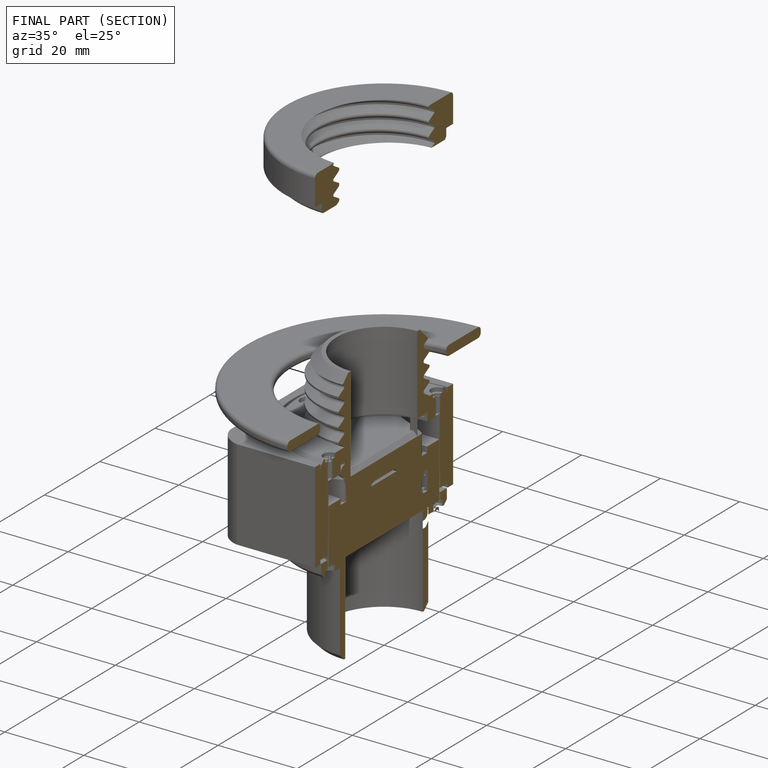
[diagram: finished part — half-section view (interior)]
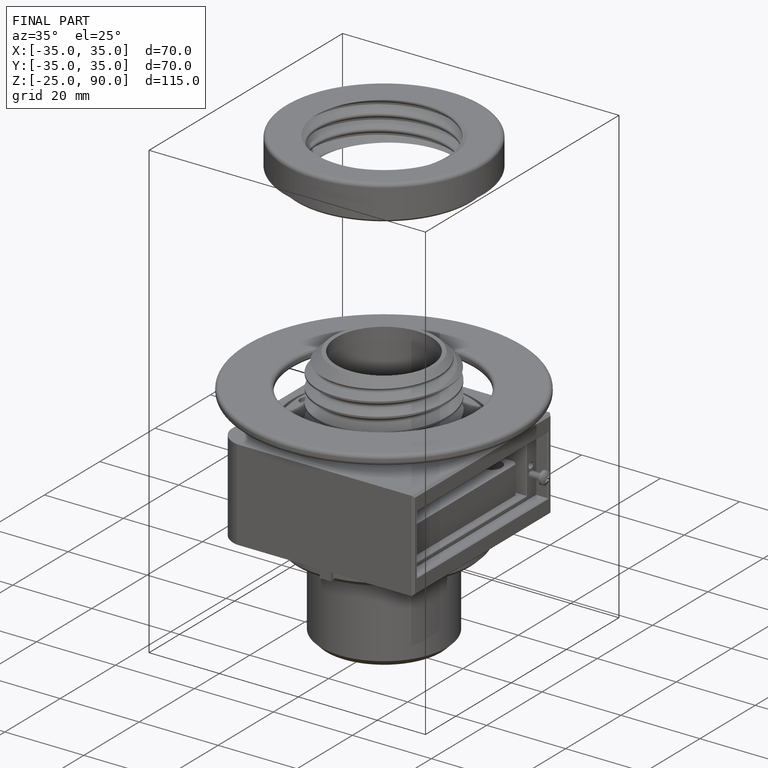
[diagram: finished part — iso view with bounding-box wireframe]
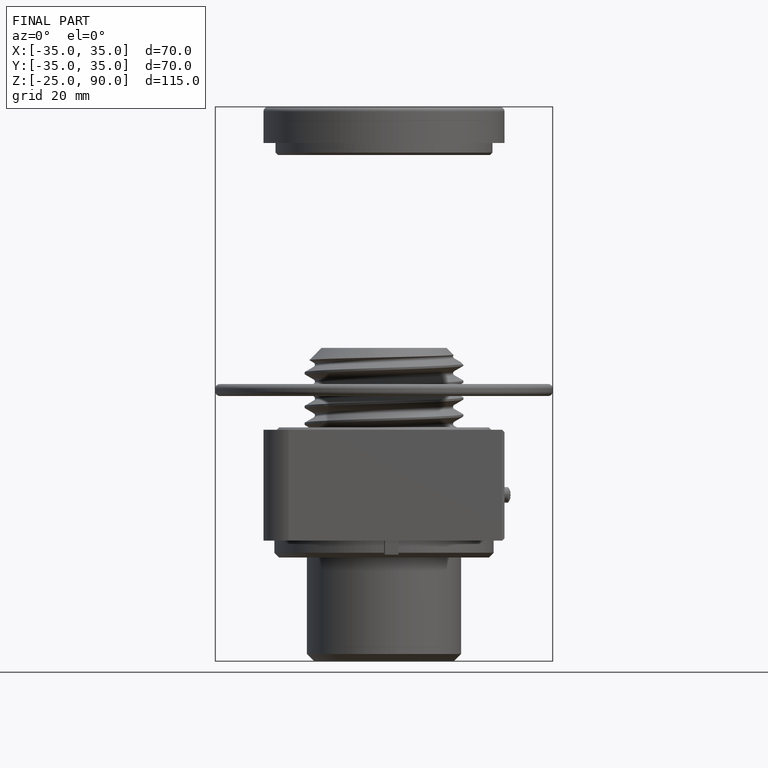
[diagram: finished part — front view with bounding-box wireframe]
